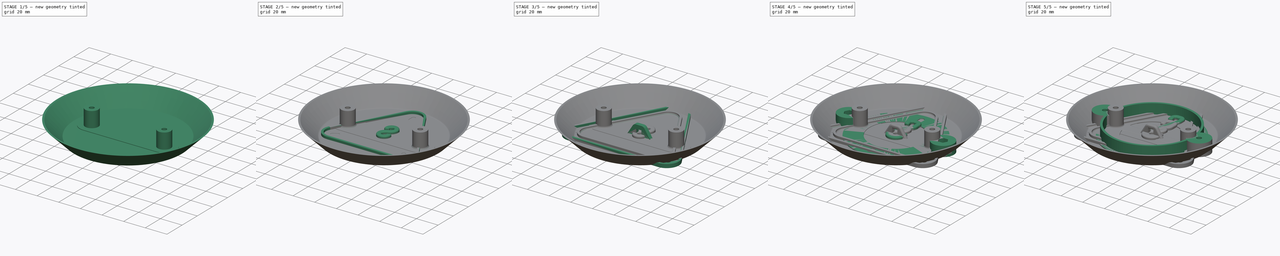
[diagram: build sequence overview — one tinted view per stage of 5, left to right]
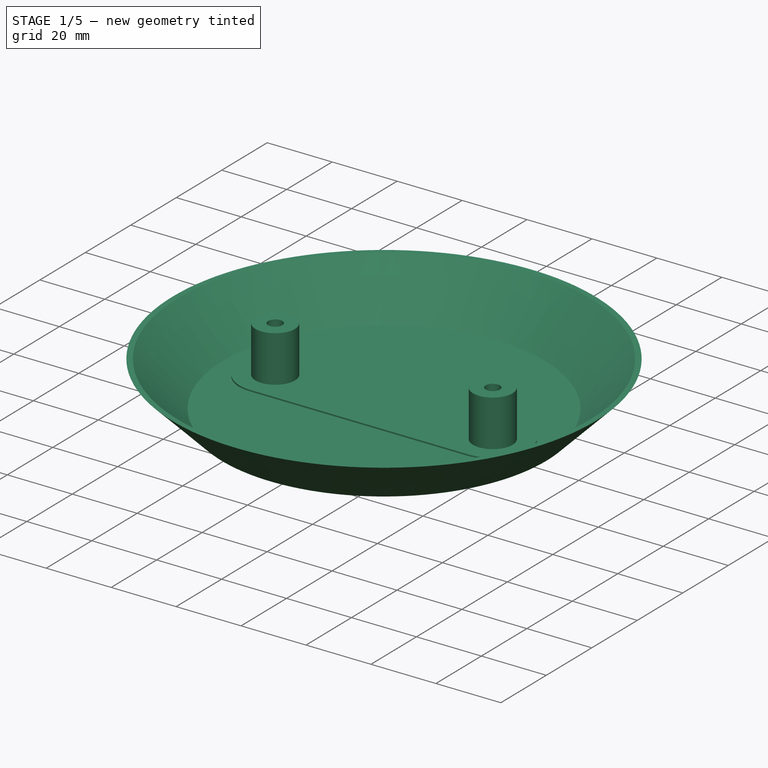
[diagram: stage 1 of 5 — iso view after this stage's code; geometry added in this stage tinted green]
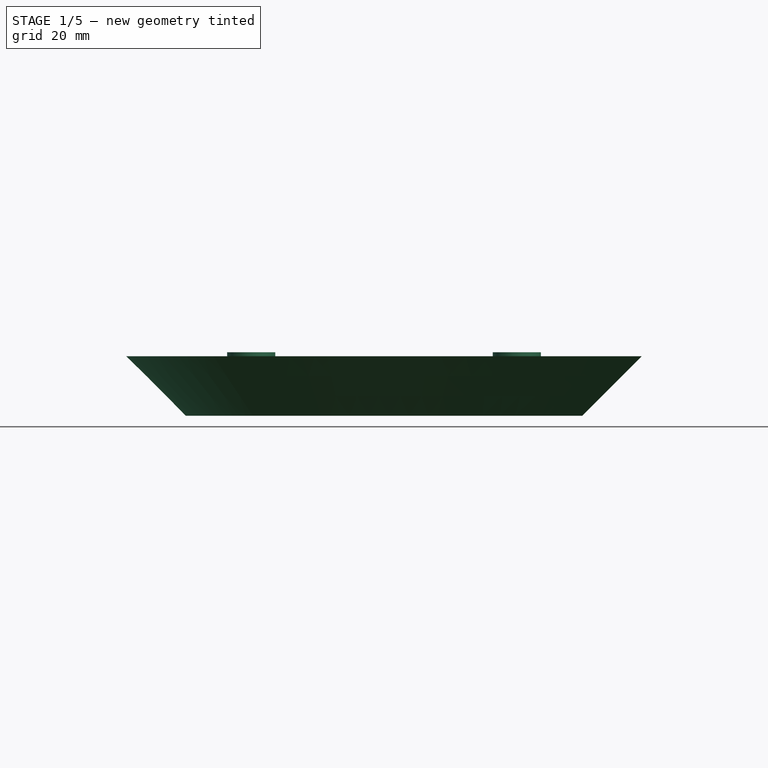
[diagram: stage 1 of 5 — front view after this stage's code; geometry added in this stage tinted green]
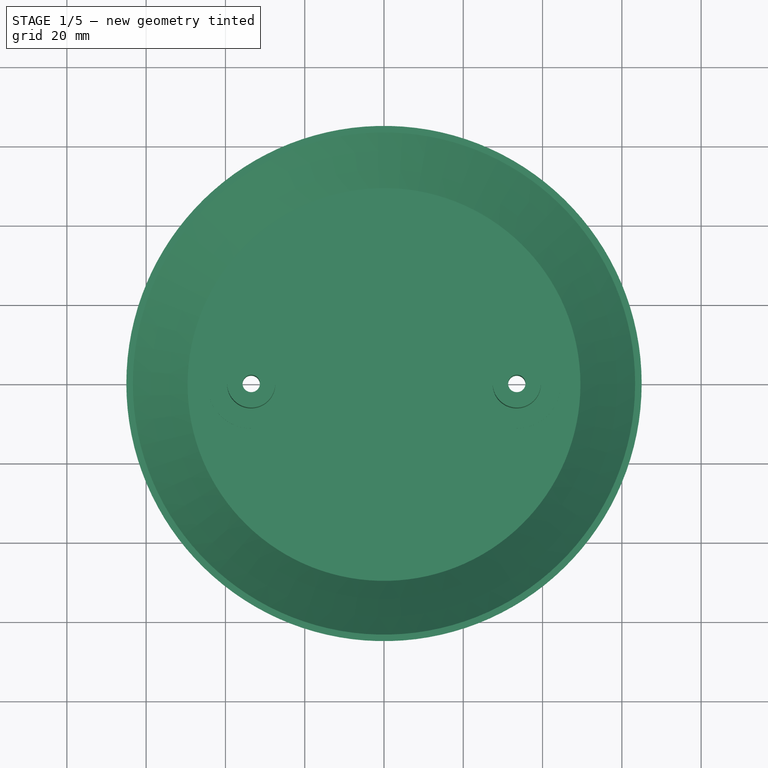
[diagram: stage 1 of 5 — top view after this stage's code; geometry added in this stage tinted green]
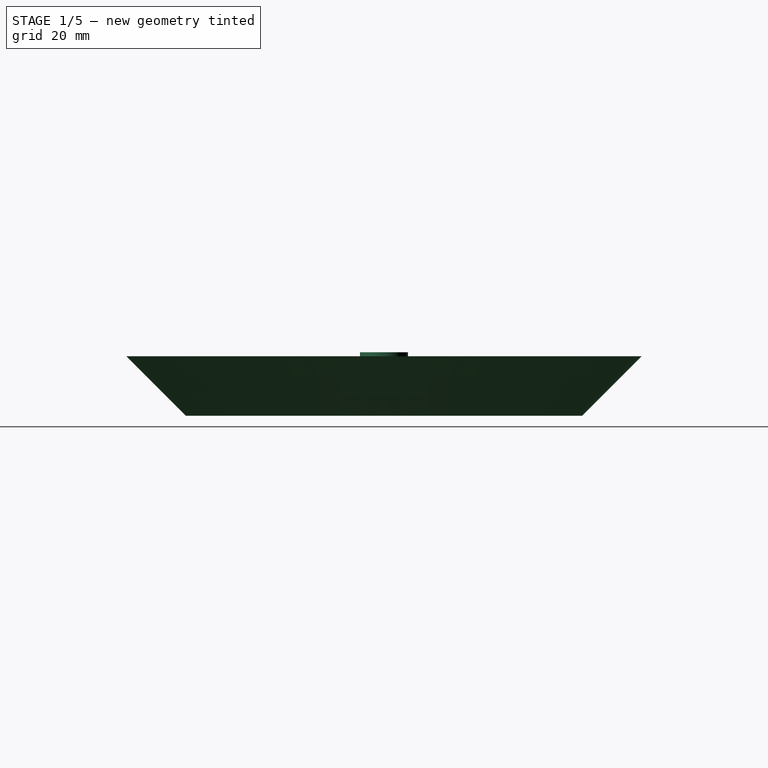
[diagram: stage 1 of 5 — right view after this stage's code; geometry added in this stage tinted green]
FCSTD DOCUMENT  (FreeCAD 0.19R24291 (Git))
Label: CeilingLampAdapter
License: All rights reserved
LicenseURL: http://en.wikipedia.org/wiki/All_rights_reserved
objects: Sketcher::SketchObject×27, PartDesign::Pad×18, PartDesign::Body×9, PartDesign::Fillet×7, PartDesign::Pocket×4, Spreadsheet::Sheet×2, App::Part×2, PartDesign::Chamfer×1, PartDesign::AdditiveLoft×1, PartDesign::ShapeBinder×1
note: 99 computed .brp shape members not serialized (recipe doc carries the construction recipe); baked Part::Feature solids carry a one-line shape summary decoded from their .brp

FEATURE [PartDesign::Body] Body007  label="SmallHookBody"
  Group = -> [Sketch018,Pad014,Fillet007]
  Origin = -> Origin009
  Tip = -> Fillet007
FEATURE [Sketcher::SketchObject] Sketch019  label="CBC_Template_top"
  FullyConstrained = true
  MapMode = 5
  Support = -> [XY_Plane008]
  expr: Constraints[18] = .Constraints.Ri + 15mm
  expr: Constraints[12] = .Constraints.Rh + 2.07mm
  expr: Constraints[2] = <<Screws>>.M4Radius
  sketch-geometry (10):
    g0: Circle CenterX=-33.5 CenterY=0 CenterZ=0 NormalX=0 NormalY=0 NormalZ=1 AngleXU=0 Radius=2.2
    g1: Circle CenterX=33.5 CenterY=0 CenterZ=0 NormalX=0 NormalY=0 NormalZ=1 AngleXU=0 Radius=2.2
    g2: LineSegment StartX=-33.5 StartY=0 StartZ=0 EndX=33.5 EndY=0 EndZ=0
    g3: GeomPoint X=0 Y=0 Z=0
    g4: Circle CenterX=0 CenterY=0 CenterZ=0 NormalX=0 NormalY=0 NormalZ=1 AngleXU=0 Radius=50
    g5: Circle CenterX=-33.5 CenterY=0 CenterZ=0 NormalX=0 NormalY=0 NormalZ=1 AngleXU=0 Radius=4
    g6: Circle CenterX=-33.5 CenterY=0 CenterZ=0 NormalX=0 NormalY=0 NormalZ=1 AngleXU=0 Radius=6.07
    g7: Circle CenterX=33.5 CenterY=0 CenterZ=0 NormalX=0 NormalY=0 NormalZ=1 AngleXU=0 Radius=4
    g8: Circle CenterX=33.5 CenterY=0 CenterZ=0 NormalX=0 NormalY=0 NormalZ=1 AngleXU=0 Radius=6.07
    g9: Circle CenterX=0 CenterY=0 CenterZ=0 NormalX=0 NormalY=0 NormalZ=1 AngleXU=0 Radius=65
  constraints (20):
    c: DistanceX(g0,g1) = 67
    c: Equal(g0,g1)
    c: Radius(g0) = 2.2
    c: Coincident(g2,g0)
    c: Coincident(g2,g1)
    c: Horizontal(g2)
    c: Symmetric(g0,g1,g3)
    c: Coincident(g4,g3)
    c: Radius(g4) = 50  'Ri'
    c: Coincident(g5,g0)
    c: Coincident(g6,g0)
    c: Radius(g5) = 4  'Rh'
    c: Radius(g6) = 6.07
    c: Coincident(g7,g1)
    c: Coincident(g8,g1)
    c: Equal(g8,g6)
    c: Equal(g5,g7)
    c: Coincident(g9,g4)
    c: Radius(g9) = 65
    c: Coincident(g4,g-1)  '__ANCHOR__'
FEATURE [Sketcher::SketchObject] Sketch020  label="CBC_Base"
  ExternalGeometry = -> [Sketch019]
  FullyConstrained = true
  MapMode = 5
  Support = -> [XY_Plane008]
  sketch-geometry (3):
    g0: Circle CenterX=0 CenterY=0 CenterZ=0 NormalX=0 NormalY=0 NormalZ=1 AngleXU=0 Radius=50
    g1: Circle CenterX=33.5 CenterY=0 CenterZ=0 NormalX=0 NormalY=0 NormalZ=1 AngleXU=0 Radius=2.2
    g2: Circle CenterX=-33.5 CenterY=0 CenterZ=0 NormalX=0 NormalY=0 NormalZ=1 AngleXU=0 Radius=2.2
  constraints (6):
    c: Coincident(g0,g-1)
    c: Equal(g0,g-3)
    c: Equal(g2,g-5)
    c: Equal(g1,g-4)
    c: Coincident(g1,g-4)
    c: Coincident(g2,g-5)
FEATURE [PartDesign::Pad] Pad015  label="CBC_Base_"
  Direction = (1,1,1)
  Length = 1.2
  Length2 = 100
  Profile = -> Sketch020
  Type = 0
FEATURE [Sketcher::SketchObject] Sketch021  label="CBC_SideBottom"
  ExternalGeometry = -> [Sketch019]
  FullyConstrained = true
  MapMode = 5
  Support = -> [XY_Plane008]
  sketch-geometry (3):
    g0: Circle CenterX=0 CenterY=0 CenterZ=0 NormalX=0 NormalY=0 NormalZ=1 AngleXU=0 Radius=48.35
    g1: Circle CenterX=0 CenterY=0 CenterZ=0 NormalX=0 NormalY=0 NormalZ=1 AngleXU=0 Radius=50
    g2: LineSegment StartX=48.35 StartY=0 StartZ=0 EndX=50 EndY=0 EndZ=0
  constraints (8):
    c: Coincident(g0,g-1)
    c: Coincident(g1,g0)
    c: PointOnObject(g2,g0)
    c: PointOnObject(g2,g1)
    c: PointOnObject(g0,g2)
    c: Horizontal(g2)
    c: DistanceX(g2,g2) = 1.65
    c: Equal(g1,g-3)
FEATURE [Sketcher::SketchObject] Sketch022  label="CBC_SideTop"
  AttachmentOffset = pos=(0,0,15) rot=(0,0,1;0rad)
  ExternalGeometry = -> [Sketch019]
  FullyConstrained = true
  MapMode = 5
  Placement = pos=(0,0,15) rot=(0,0,1;0rad)
  Support = -> [XY_Plane008]
  sketch-geometry (3):
    g0: Circle CenterX=1e-16 CenterY=0 CenterZ=0 NormalX=0 NormalY=0 NormalZ=1 AngleXU=0 Radius=63.35
    g1: Circle CenterX=1e-16 CenterY=0 CenterZ=0 NormalX=0 NormalY=0 NormalZ=1 AngleXU=0 Radius=65
    g2: LineSegment StartX=63.35 StartY=0 StartZ=0 EndX=65 EndY=0 EndZ=0
  constraints (8):
    c: Coincident(g0,g-1)
    c: Coincident(g1,g0)
    c: PointOnObject(g2,g0)
    c: PointOnObject(g2,g1)
    c: PointOnObject(g0,g2)
    c: Horizontal(g2)
    c: DistanceX(g2,g2) = 1.65
    c: Equal(g1,g-3)
FEATURE [PartDesign::AdditiveLoft] AdditiveLoft  label="CBC_SideLoft"
  BaseFeature = -> Pad015
  Closed = false
  Profile = -> Sketch021
  Refine = true
  Ruled = false
  Sections = -> [Sketch022]
FEATURE [Sketcher::SketchObject] Sketch023  label="CBC_ScrewBase"
  AttachmentOffset = pos=(0,0,1.2) rot=(0,0,1;0rad)
  ExternalGeometry = -> [Sketch019]
  FullyConstrained = true
  MapMode = 5
  Placement = pos=(0,0,1.2) rot=(0,0,1;0rad)
  Support = -> [XY_Plane008]
  expr: .AttachmentOffset.Base.z = <<CBC_Base>>.AttachmentOffset.Base.z + <<CBC_Base_>>.Length
  sketch-geometry (4):
    g0: Circle CenterX=-33.5 CenterY=0 CenterZ=0 NormalX=0 NormalY=0 NormalZ=1 AngleXU=0 Radius=2.2
    g1: Circle CenterX=-33.5 CenterY=0 CenterZ=0 NormalX=0 NormalY=0 NormalZ=1 AngleXU=0 Radius=6.07
    g2: Circle CenterX=33.5 CenterY=0 CenterZ=0 NormalX=0 NormalY=0 NormalZ=1 AngleXU=0 Radius=2.2
    g3: Circle CenterX=33.5 CenterY=0 CenterZ=0 NormalX=0 NormalY=0 NormalZ=1 AngleXU=0 Radius=6.07
  constraints (8):
    c: Coincident(g0,g-4)
    c: Coincident(g1,g0)
    c: Coincident(g2,g-6)
    c: Coincident(g3,g2)
    c: Equal(g3,g-6)
    c: Equal(g2,g-5)
    c: Equal(g1,g-4)
    c: Equal(g0,g-3)
FEATURE [PartDesign::Pad] Pad016  label="CBC_ScrewBase_"
  BaseFeature = -> AdditiveLoft
  Direction = (1,1,1)
  Length = 14.8
  Length2 = 100
  Profile = -> Sketch023
  Type = 0
  expr: Length = <<CBC_SideTop>>.AttachmentOffset.Base.z - <<CBC_ScrewBase>>.AttachmentOffset.Base.z + 1mm
FEATURE [PartDesign::Body] Body008  label="CentralBoxCoverBody"
  Group = -> [Sketch019,Sketch020,Pad015,Sketch021,Sketch022,AdditiveLoft,Sketch023,Pad016,Sketch024,Pocket002,Fillet008]
  Origin = -> Origin010
  Tip = -> Fillet008
FEATURE [PartDesign::ShapeBinder] ShapeBinder
  Support = -> [Sketch019]
  TraceSupport = false
FEATURE [Sketcher::SketchObject] Sketch025
  ExternalGeometry = -> [ShapeBinder]
  FullyConstrained = true
  MapMode = 5
  Support = -> [XY_Plane009]
  sketch-geometry (5):
    g0: ArcOfCircle CenterX=-33.5 CenterY=0 CenterZ=0 NormalX=0 NormalY=0 NormalZ=1 AngleXU=0 Radius=11.07 StartAngle=1.5708 EndAngle=4.71239
    g1: ArcOfCircle CenterX=33.5 CenterY=0 CenterZ=0 NormalX=0 NormalY=0 NormalZ=1 AngleXU=0 Radius=11.07 StartAngle=4.71239 EndAngle=7.85398
    g2: LineSegment StartX=-33.5 StartY=-11.07 StartZ=0 EndX=33.5 EndY=-11.07 EndZ=0
    g3: LineSegment StartX=-33.5 StartY=11.07 StartZ=0 EndX=33.5 EndY=11.07 EndZ=0
    g4: LineSegment StartX=33.5 StartY=11.07 StartZ=0 EndX=33.5 EndY=6.07 EndZ=0
  constraints (11):
    c: Tangent(g0,g3) = 1.5708
    c: Tangent(g0,g2) = -1.5708
    c: Tangent(g2,g1) = -1.5708
    c: Tangent(g3,g1) = 1.5708
    c: Horizontal(g2)
    c: Coincident(g0,g-3)
    c: Coincident(g1,g-4)
    c: Coincident(g4,g1)
    c: PointOnObject(g4,g-5)
    c: Vertical(g4)
    c: DistanceY(g4,g4) = 5
FEATURE [PartDesign::Pad] Pad017
  Direction = (1,1,1)
  Length = 1.65
  Length2 = 100
  Profile = -> Sketch025
  Type = 0
FEATURE [Sketcher::SketchObject] Sketch026
  ExternalGeometry = -> [ShapeBinder]
  FullyConstrained = true
  MapMode = 5
  Support = -> [XY_Plane009]
  sketch-geometry (4):
    g0: Circle CenterX=-33.5 CenterY=0 CenterZ=0 NormalX=0 NormalY=0 NormalZ=1 AngleXU=0 Radius=6.07
    g1: Circle CenterX=-33.5 CenterY=0 CenterZ=0 NormalX=0 NormalY=0 NormalZ=1 AngleXU=0 Radius=2.2
    g2: Circle CenterX=33.5 CenterY=0 CenterZ=0 NormalX=0 NormalY=0 NormalZ=1 AngleXU=0 Radius=6.07
    g3: Circle CenterX=33.5 CenterY=0 CenterZ=0 NormalX=0 NormalY=0 NormalZ=1 AngleXU=0 Radius=2.2
  constraints (8):
    c: Coincident(g0,g-6)
    c: Coincident(g1,g0)
    c: Coincident(g2,g-4)
    c: Coincident(g3,g2)
    c: Equal(g2,g-3)
    c: Equal(g3,g-4)
    c: Equal(g0,g-5)
    c: Equal(g1,g-6)
FEATURE [PartDesign::Pad] Pad018
  BaseFeature = -> Pad017
  Direction = (1,1,1)
  Length = 15
  Length2 = 100
  Profile = -> Sketch026
  Type = 0
FEATURE [Sketcher::SketchObject] Sketch027
  AttachmentOffset = pos=(0,0,13) rot=(0,0,1;0rad)
  ExternalGeometry = -> [ShapeBinder]
  FullyConstrained = true
  MapMode = 5
  Placement = pos=(0,0,13) rot=(0,0,1;0rad)
  Support = -> [XY_Plane009]
  sketch-geometry (2):
    g0: Circle CenterX=-33.5 CenterY=0 CenterZ=0 NormalX=0 NormalY=0 NormalZ=1 AngleXU=0 Radius=4
    g1: Circle CenterX=33.5 CenterY=0 CenterZ=0 NormalX=0 NormalY=0 NormalZ=1 AngleXU=0 Radius=4
  constraints (4):
    c: Coincident(g0,g-3)
    c: Coincident(g1,g-4)
    c: Equal(g1,g-4)
    c: Equal(g0,g-3)
FEATURE [PartDesign::Pocket] Pocket003
  BaseFeature = -> Pad018
  Length = 5
  Length2 = 100
  Profile = -> Sketch027
  Refine = true
  Type = 1
FEATURE [PartDesign::Body] Body009
  Group = -> [ShapeBinder,Sketch025,Pad017,Sketch026,Pad018,Sketch027,Pocket003]
  Origin = -> Origin011
  Tip = -> Pocket003
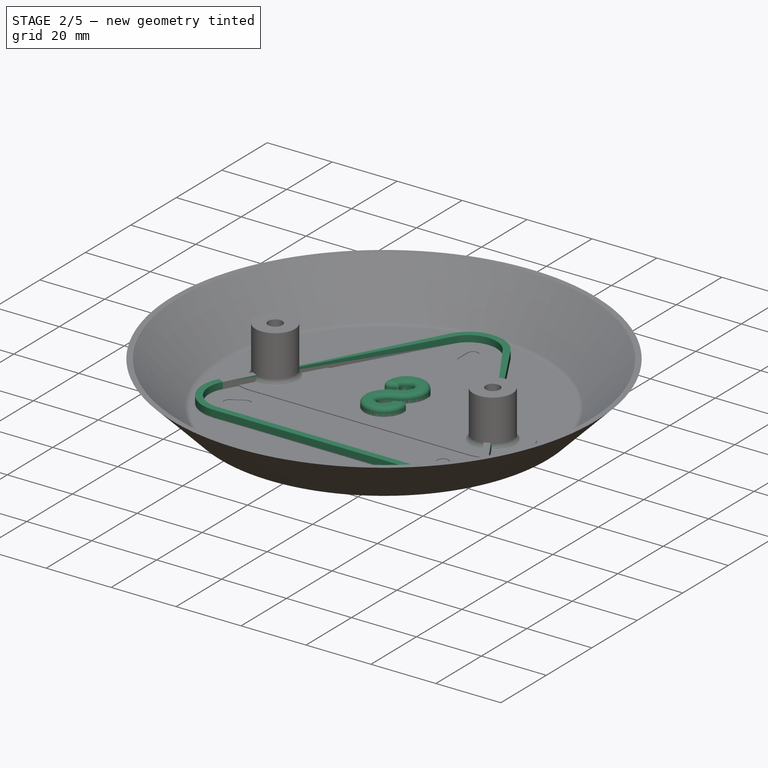
[diagram: stage 2 of 5 — iso view after this stage's code; geometry added in this stage tinted green]
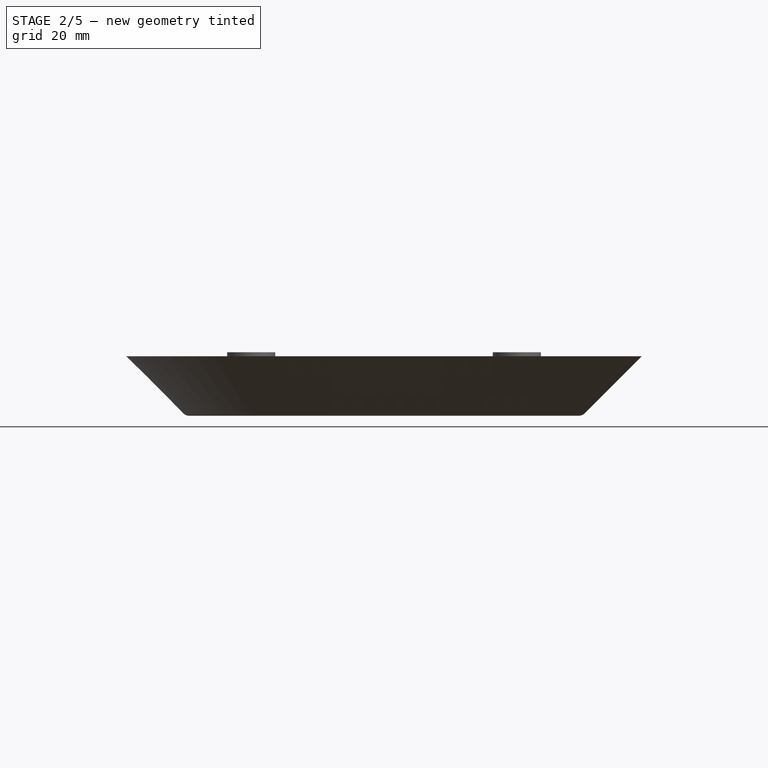
[diagram: stage 2 of 5 — front view after this stage's code; geometry added in this stage tinted green]
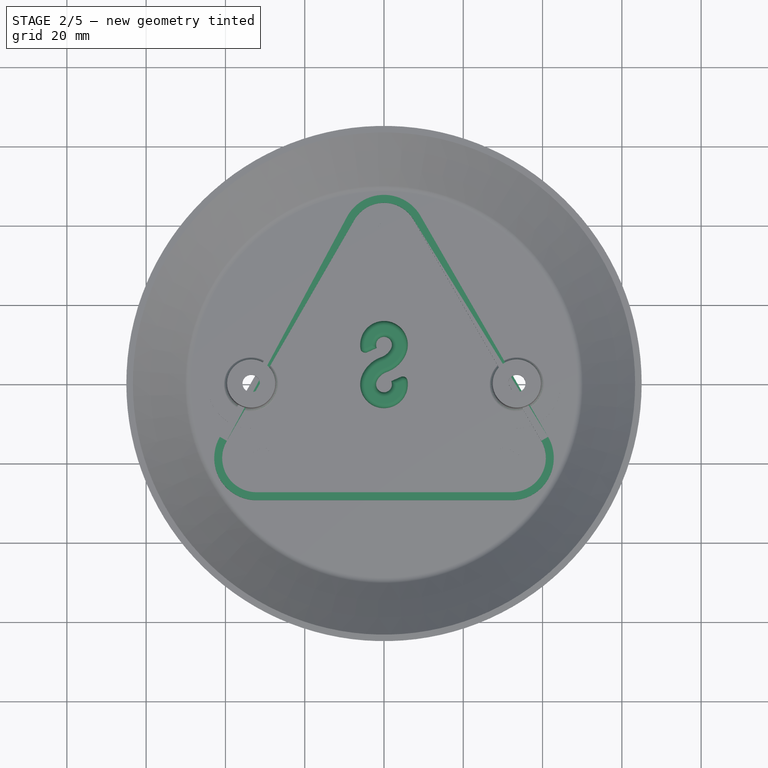
[diagram: stage 2 of 5 — top view after this stage's code; geometry added in this stage tinted green]
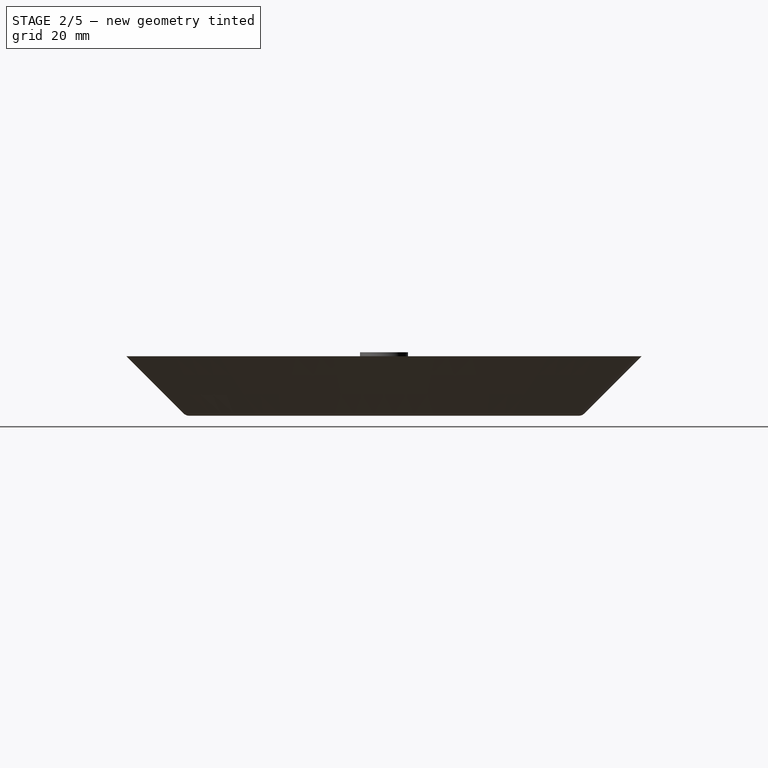
[diagram: stage 2 of 5 — right view after this stage's code; geometry added in this stage tinted green]
FEATURE [PartDesign::Body] Body005  label="LivingRoomMainLampAdapter"
  Group = -> [Sketch008,Sketch009,Pad009,Sketch010,Pad008,Sketch011,Pad010,Fillet005,Sketch012,Pocket001]
  Origin = -> Origin007
  Tip = -> Pocket001
FEATURE [Sketcher::SketchObject] Sketch013  label="GRLA_Template"
  FullyConstrained = true
  MapMode = 5
  expr: Constraints[80] = .Constraints.Rc + 2mm
  expr: .Constraints.Rc = .Constraints.Ri + .Constraints.Dist / 2 + 5mm
  sketch-geometry (46):
    g0: LineSegment StartX=-32.1728 StartY=-18.575 StartZ=0 EndX=7.1e-15 EndY=37.15 EndZ=0
    g1: LineSegment StartX=7.1e-15 StartY=37.15 StartZ=0 EndX=32.1728 EndY=-18.575 EndZ=0
    g2: LineSegment StartX=32.1728 StartY=-18.575 StartZ=0 EndX=-32.1728 EndY=-18.575 EndZ=0
    g3: Circle CenterX=0 CenterY=0 CenterZ=0 NormalX=0 NormalY=0 NormalZ=1 AngleXU=0 Radius=18.575
    g4: Circle CenterX=0 CenterY=0 CenterZ=0 NormalX=0 NormalY=0 NormalZ=1 AngleXU=0 Radius=63.5
    g5: LineSegment StartX=-39.664 StartY=-14.25 StartZ=0 EndX=-7.49112 EndY=41.475 EndZ=0
    g6: LineSegment StartX=7.49112 StartY=41.475 StartZ=0 EndX=39.664 EndY=-14.25 EndZ=0
    g7: LineSegment StartX=32.1728 StartY=-27.225 StartZ=0 EndX=-32.1728 EndY=-27.225 EndZ=0
    g8: ArcOfCircle CenterX=-32.1728 CenterY=-18.575 CenterZ=0 NormalX=0 NormalY=0 NormalZ=1 AngleXU=0 Radius=8.65 StartAngle=2.61799 EndAngle=4.71239
    g9: ArcOfCircle CenterX=7.1e-15 CenterY=37.15 CenterZ=0 NormalX=0 NormalY=0 NormalZ=1 AngleXU=0 Radius=8.65 StartAngle=0.523599 EndAngle=2.61799
    g10: ArcOfCircle CenterX=32.1728 CenterY=-18.575 CenterZ=0 NormalX=0 NormalY=0 NormalZ=1 AngleXU=0 Radius=8.65 StartAngle=4.71239 EndAngle=6.80678
    g11: LineSegment StartX=7.1e-15 StartY=37.15 StartZ=0 EndX=7.49112 EndY=41.475 EndZ=0
    g12: LineSegment StartX=7.1e-15 StartY=37.15 StartZ=0 EndX=-7.49112 EndY=41.475 EndZ=0
    g13: LineSegment StartX=32.1728 StartY=-18.575 StartZ=0 EndX=39.664 EndY=-14.25 EndZ=0
    g14: LineSegment StartX=32.1728 StartY=-18.575 StartZ=0 EndX=32.1728 EndY=-27.225 EndZ=0
    g15: LineSegment StartX=-32.1728 StartY=-18.575 StartZ=0 EndX=-32.1728 EndY=-27.225 EndZ=0
    g16: LineSegment StartX=-39.664 StartY=-14.25 StartZ=0 EndX=-32.1728 EndY=-18.575 EndZ=0
    g17: LineSegment StartX=-9.22317 StartY=42.475 StartZ=0 EndX=-41.396 EndY=-13.25 EndZ=0
    g18: LineSegment StartX=-32.1728 StartY=-29.225 StartZ=0 EndX=32.1728 EndY=-29.225 EndZ=0
    g19: LineSegment StartX=41.396 StartY=-13.25 StartZ=0 EndX=9.22317 EndY=42.475 EndZ=0
    g20: ArcOfCircle CenterX=7.1e-15 CenterY=37.15 CenterZ=0 NormalX=0 NormalY=0 NormalZ=1 AngleXU=0 Radius=10.65 StartAngle=0.523599 EndAngle=2.61799
    g21: ArcOfCircle CenterX=32.1728 CenterY=-18.575 CenterZ=0 NormalX=0 NormalY=0 NormalZ=1 AngleXU=0 Radius=10.65 StartAngle=4.71239 EndAngle=6.80678
    g22: ArcOfCircle CenterX=-32.1728 CenterY=-18.575 CenterZ=0 NormalX=0 NormalY=0 NormalZ=1 AngleXU=0 Radius=10.65 StartAngle=2.61799 EndAngle=4.71239
    g23: ArcOfCircle CenterX=7.5e-15 CenterY=39.15 CenterZ=0 NormalX=0 NormalY=0 NormalZ=1 AngleXU=0 Radius=1.65 StartAngle=1.7e-15 EndAngle=3.14159
    g24: ArcOfCircle CenterX=6.7e-15 CenterY=35.15 CenterZ=0 NormalX=0 NormalY=0 NormalZ=1 AngleXU=0 Radius=1.65 StartAngle=3.14159 EndAngle=6.28319
    g25: LineSegment StartX=-1.65 StartY=39.15 StartZ=0 EndX=-1.65 EndY=35.15 EndZ=0
    g26: LineSegment StartX=1.65 StartY=39.15 StartZ=0 EndX=1.65 EndY=35.15 EndZ=0
    g27: LineSegment StartX=7.5e-15 StartY=39.15 StartZ=0 EndX=6.7e-15 EndY=35.15 EndZ=0
    g28: LineSegment StartX=33.9049 StartY=-19.575 StartZ=0 EndX=30.4408 EndY=-17.575 EndZ=0
    g29: ArcOfCircle CenterX=30.4408 CenterY=-17.575 CenterZ=0 NormalX=0 NormalY=0 NormalZ=1 AngleXU=0 Radius=1.65 StartAngle=1.0472 EndAngle=4.18879
    g30: ArcOfCircle CenterX=33.9049 CenterY=-19.575 CenterZ=0 NormalX=0 NormalY=0 NormalZ=1 AngleXU=0 Radius=1.65 StartAngle=4.18879 EndAngle=7.33038
    g31: LineSegment StartX=31.2658 StartY=-16.1461 StartZ=0 EndX=34.7299 EndY=-18.1461 EndZ=0
    g32: LineSegment StartX=29.6158 StartY=-19.0039 StartZ=0 EndX=33.0799 EndY=-21.0039 EndZ=0
    g33: LineSegment StartX=-33.9049 StartY=-19.575 StartZ=0 EndX=-30.4408 EndY=-17.575 EndZ=0
    g34: ArcOfCircle CenterX=-30.4408 CenterY=-17.575 CenterZ=0 NormalX=0 NormalY=0 NormalZ=1 AngleXU=0 Radius=1.65 StartAngle=5.23599 EndAngle=8.37758
    g35: ArcOfCircle CenterX=-33.9049 CenterY=-19.575 CenterZ=0 NormalX=0 NormalY=0 NormalZ=1 AngleXU=0 Radius=1.65 StartAngle=2.0944 EndAngle=5.23599
    g36: LineSegment StartX=-34.7299 StartY=-18.1461 StartZ=0 EndX=-31.2658 EndY=-16.1461 EndZ=0
    g37: LineSegment StartX=-33.0799 StartY=-21.0039 StartZ=0 EndX=-29.6158 EndY=-19.0039 EndZ=0
    g38: LineSegment StartX=-2.5 StartY=1.75 StartZ=0 EndX=2.5 EndY=1.75 EndZ=0
    g39: LineSegment StartX=2.5 StartY=1.75 StartZ=0 EndX=2.5 EndY=-1.75 EndZ=0
    g40: LineSegment StartX=2.5 StartY=-1.75 StartZ=0 EndX=-2.5 EndY=-1.75 EndZ=0
    g41: LineSegment StartX=-2.5 StartY=-1.75 StartZ=0 EndX=-2.5 EndY=1.75 EndZ=0
    g42: LineSegment StartX=-3e-16 StartY=1.75 StartZ=0 EndX=-3e-16 EndY=-1.75 EndZ=0
    g43: Circle CenterX=0 CenterY=0 CenterZ=0 NormalX=0 NormalY=0 NormalZ=1 AngleXU=0 Radius=31.5
    g44: GeomPoint X=-29.0119 Y=-16.75 Z=0
    g45: GeomPoint X=-27.2798 Y=-15.75 Z=0
  constraints (115):
    c: Coincident(g0,g1)
    c: Coincident(g1,g2)
    c: Coincident(g2,g0)
    c: Equal(g0,g2)
    c: Equal(g2,g1)
    c: Tangent(g1,g3)
    c: Tangent(g3,g0)
    c: Tangent(g3,g2)
    c: Horizontal(g2)
    c: Coincident(g4,g3)
    c: Diameter(g4) = 127
    c: Coincident(g8,g0)
    c: Coincident(g8,g7)
    c: Coincident(g8,g5)
    c: Coincident(g9,g0)
    c: Coincident(g9,g5)
    c: Coincident(g9,g6)
    c: Coincident(g10,g1)
    c: Coincident(g10,g6)
    c: Coincident(g10,g7)
    c: Coincident(g11,g9)
    c: Coincident(g11,g6)
    c: Coincident(g12,g9)
    c: Coincident(g12,g5)
    c: Coincident(g13,g10)
    c: Coincident(g13,g6)
    c: Coincident(g14,g10)
    c: Coincident(g14,g7)
    c: Coincident(g15,g8)
    c: Coincident(g15,g7)
    c: Coincident(g16,g5)
    c: Equal(g12,g13)
    c: Equal(g13,g14)
    c: Equal(g14,g15)
    c: Equal(g15,g16)
    c: Perpendicular(g0,g16)
    c: Perpendicular(g0,g12)
    c: Perpendicular(g1,g11)
    c: Perpendicular(g1,g13)
    c: Perpendicular(g2,g14)
    c: Perpendicular(g2,g15)
    c: Horizontal(g18)
    c: PointOnObject(g19,g11)
    c: PointOnObject(g19,g13)
    c: PointOnObject(g18,g14)
    c: PointOnObject(g18,g15)
    c: PointOnObject(g17,g16)
    c: PointOnObject(g17,g12)
    c: Coincident(g20,g0)
    c: Coincident(g20,g17)
    c: Coincident(g20,g19)
    c: Coincident(g21,g1)
    c: Coincident(g21,g18)
    c: Coincident(g21,g19)
    c: Coincident(g22,g0)
    c: Coincident(g22,g17)
    c: Coincident(g22,g18)
    c: Equal(g20,g21)
    c: Tangent(g23,g26) = 1.5708
    c: Tangent(g23,g25) = -1.5708
    c: Tangent(g25,g24) = -1.5708
    c: Tangent(g26,g24) = 1.5708
    c: Equal(g23,g24)
    c: Coincident(g27,g23)
    c: Coincident(g27,g24)
    c: Symmetric(g24,g23,g0)
    c: Symmetric(g28,g28,g1)
    c: PointOnObject(g3,g28)
    c: Equal(g25,g26)
    c: PointOnObject(g3,g27)
    c: Equal(g27,g28)
    c: Coincident(g29,g28)
    c: Coincident(g30,g28)
    c: Tangent(g30,g31) = 1.5708
    c: Tangent(g30,g32) = -1.5708
    c: Tangent(g29,g32) = -1.5708
    c: Tangent(g29,g31) = 1.5708
    c: Equal(g24,g29)
    c: Equal(g29,g30)
    c: Radius(g8) = 8.65  'Rc'
    c: Radius(g22) = 10.65
    c: Symmetric(g33,g33,g0)
    c: PointOnObject(g3,g33)
    c: Equal(g33,g28)
    c: Coincident(g34,g33)
    c: Coincident(g35,g33)
    c: Tangent(g35,g37) = -1.5708
    c: Tangent(g34,g37) = -1.5708
    c: Tangent(g34,g36) = 1.5708
    c: Tangent(g35,g36) = 1.5708
    c: Equal(g35,g34)
    c: Equal(g34,g30)
    c: Coincident(g38,g39)
    c: Coincident(g39,g40)
    c: Coincident(g40,g41)
    c: Coincident(g41,g38)
    c: Horizontal(g38)
    c: Vertical(g39)
    c: Equal(g41,g39)
    c: Equal(g38,g40)
    c: Symmetric(g40,g38,g3)
    c: PointOnObject(g42,g38)
    c: PointOnObject(g42,g40)
    c: Symmetric(g38,g38,g42)
    c: Distance(g41) = 3.5
    c: DistanceX(g38,g38) = 5
    c: Radius(g34) = 1.65  'Ri'
    c: Distance(g37) = 4  'Dist'
    c: Coincident(g43,g3)
    c: Diameter(g43) = 63
    c: PointOnObject(g44,g34)
    c: PointOnObject(g45,g43)
    c: PointOnObject(g44,g33)
    c: PointOnObject(g45,g33)
    c: Coincident(g3,g-1)  '__ANCHOR__'
FEATURE [Sketcher::SketchObject] Sketch014  label="GRLA_Base"
  ExternalGeometry = -> [Sketch013]
  FullyConstrained = true
  MapMode = 5
  Support = -> [XY_Plane006]
  sketch-geometry (18):
    g0: ArcOfCircle CenterX=7.1e-15 CenterY=37.15 CenterZ=0 NormalX=0 NormalY=0 NormalZ=1 AngleXU=0 Radius=10.65 StartAngle=0.523599 EndAngle=2.61799
    g1: ArcOfCircle CenterX=-32.1728 CenterY=-18.575 CenterZ=0 NormalX=0 NormalY=0 NormalZ=1 AngleXU=0 Radius=10.65 StartAngle=2.61799 EndAngle=4.71239
    g2: ArcOfCircle CenterX=32.1728 CenterY=-18.575 CenterZ=0 NormalX=0 NormalY=0 NormalZ=1 AngleXU=0 Radius=10.65 StartAngle=4.71239 EndAngle=6.80678
    g3: ArcOfCircle CenterX=7.5e-15 CenterY=39.15 CenterZ=0 NormalX=0 NormalY=0 NormalZ=1 AngleXU=0 Radius=1.65 StartAngle=0 EndAngle=3.14159
    g4: ArcOfCircle CenterX=6.7e-15 CenterY=35.15 CenterZ=0 NormalX=0 NormalY=0 NormalZ=1 AngleXU=0 Radius=1.65 StartAngle=3.14159 EndAngle=6.28319
    g5: ArcOfCircle CenterX=30.4408 CenterY=-17.575 CenterZ=0 NormalX=0 NormalY=0 NormalZ=1 AngleXU=0 Radius=1.65 StartAngle=1.0472 EndAngle=4.18879
    g6: ArcOfCircle CenterX=33.9049 CenterY=-19.575 CenterZ=0 NormalX=0 NormalY=0 NormalZ=1 AngleXU=0 Radius=1.65 StartAngle=4.18879 EndAngle=7.33038
    g7: ArcOfCircle CenterX=-30.4408 CenterY=-17.575 CenterZ=0 NormalX=0 NormalY=0 NormalZ=1 AngleXU=0 Radius=1.65 StartAngle=5.23599 EndAngle=8.37758
    g8: ArcOfCircle CenterX=-33.9049 CenterY=-19.575 CenterZ=0 NormalX=0 NormalY=0 NormalZ=1 AngleXU=0 Radius=1.65 StartAngle=2.0944 EndAngle=5.23599
    g9: LineSegment StartX=-34.7299 StartY=-18.1461 StartZ=0 EndX=-31.2658 EndY=-16.1461 EndZ=0
    g10: LineSegment StartX=-33.0799 StartY=-21.0039 StartZ=0 EndX=-29.6158 EndY=-19.0039 EndZ=0
    g11: LineSegment StartX=-32.1728 StartY=-29.225 StartZ=0 EndX=32.1728 EndY=-29.225 EndZ=0
    g12: LineSegment StartX=9.22317 StartY=42.475 StartZ=0 EndX=41.396 EndY=-13.25 EndZ=0
    g13: LineSegment StartX=-9.22317 StartY=42.475 StartZ=0 EndX=-41.396 EndY=-13.25 EndZ=0
    g14: LineSegment StartX=29.6158 StartY=-19.0039 StartZ=0 EndX=33.0799 EndY=-21.0039 EndZ=0
    g15: LineSegment StartX=31.2658 StartY=-16.1461 StartZ=0 EndX=34.7299 EndY=-18.1461 EndZ=0
    g16: LineSegment StartX=1.65 StartY=39.15 StartZ=0 EndX=1.65 EndY=35.15 EndZ=0
    g17: LineSegment StartX=-1.65 StartY=39.15 StartZ=0 EndX=-1.65 EndY=35.15 EndZ=0
  constraints (45):
    c: Coincident(g0,g-3)
    c: Coincident(g0,g-3)
    c: Coincident(g0,g-3)
    c: Coincident(g1,g-4)
    c: Coincident(g1,g-4)
    c: Coincident(g1,g-4)
    c: Coincident(g2,g-5)
    c: Coincident(g2,g-5)
    c: Coincident(g2,g-5)
    c: Coincident(g3,g-10)
    c: Coincident(g3,g-10)
    c: Coincident(g3,g-10)
    c: Coincident(g4,g-11)
    c: Coincident(g4,g-11)
    c: Coincident(g4,g-11)
    c: Coincident(g5,g-7)
    c: Coincident(g5,g-7)
    c: Coincident(g5,g-7)
    c: Coincident(g6,g-6)
    c: Coincident(g6,g-6)
    c: Coincident(g6,g-6)
    c: Coincident(g7,g-8)
    c: Coincident(g7,g-8)
    c: Coincident(g7,g-8)
    c: Coincident(g8,g-9)
    c: Coincident(g8,g-9)
    c: Coincident(g8,g-9)
    c: Coincident(g9,g8)
    c: Coincident(g9,g7)
    c: Coincident(g10,g8)
    c: Coincident(g10,g7)
    c: Coincident(g11,g1)
    c: Coincident(g11,g2)
    c: Coincident(g12,g0)
    c: Coincident(g12,g2)
    c: Coincident(g13,g0)
    c: Coincident(g13,g1)
    c: Coincident(g14,g5)
    c: Coincident(g14,g6)
    c: Coincident(g15,g5)
    c: Coincident(g15,g6)
    c: Coincident(g16,g3)
    c: Coincident(g16,g4)
    c: Coincident(g17,g3)
    c: Coincident(g17,g4)
FEATURE [PartDesign::Pad] Pad011  label="GRLA_Base_"
  AllowMultiFace = false
  Direction = (1,1,1)
  Length = 1.4
  Length2 = 100
  Profile = -> Sketch014
  Type = 0
FEATURE [Sketcher::SketchObject] Sketch015  label="GRLA_Verge"
  AttachmentOffset = pos=(0,0,1.4) rot=(0,0,1;0rad)
  ExternalGeometry = -> [Sketch013]
  FullyConstrained = true
  MapMode = 5
  Placement = pos=(0,0,1.4) rot=(0,0,1;0rad)
  Support = -> [XY_Plane006]
  expr: .AttachmentOffset.Base.z = <<GRLA_Base>>.Placement.Base.z + <<GRLA_Base_>>.Length
  sketch-geometry (12):
    g0: ArcOfCircle CenterX=7.7e-15 CenterY=37.15 CenterZ=0 NormalX=0 NormalY=0 NormalZ=1 AngleXU=0 Radius=8.65 StartAngle=0.523599 EndAngle=2.61799
    g1: ArcOfCircle CenterX=8.6e-15 CenterY=37.15 CenterZ=0 NormalX=0 NormalY=0 NormalZ=1 AngleXU=0 Radius=10.65 StartAngle=0.523599 EndAngle=2.61799
    g2: ArcOfCircle CenterX=-32.1728 CenterY=-18.575 CenterZ=0 NormalX=0 NormalY=0 NormalZ=1 AngleXU=0 Radius=8.65 StartAngle=2.61799 EndAngle=4.71239
    g3: ArcOfCircle CenterX=-32.1728 CenterY=-18.575 CenterZ=0 NormalX=0 NormalY=0 NormalZ=1 AngleXU=0 Radius=10.65 StartAngle=2.61799 EndAngle=4.71239
    g4: ArcOfCircle CenterX=32.1728 CenterY=-18.575 CenterZ=0 NormalX=0 NormalY=0 NormalZ=1 AngleXU=0 Radius=8.65 StartAngle=4.71239 EndAngle=6.80678
    g5: ArcOfCircle CenterX=32.1728 CenterY=-18.575 CenterZ=0 NormalX=0 NormalY=0 NormalZ=1 AngleXU=0 Radius=10.65 StartAngle=4.71239 EndAngle=6.80678
    g6: LineSegment StartX=-9.22317 StartY=42.475 StartZ=0 EndX=-41.396 EndY=-13.25 EndZ=0
    g7: LineSegment StartX=-39.664 StartY=-14.25 StartZ=0 EndX=-7.49112 EndY=41.475 EndZ=0
    g8: LineSegment StartX=-32.1728 StartY=-29.225 StartZ=0 EndX=32.1728 EndY=-29.225 EndZ=0
    g9: LineSegment StartX=32.1728 StartY=-27.225 StartZ=0 EndX=-32.1728 EndY=-27.225 EndZ=0
    g10: LineSegment StartX=39.664 StartY=-14.25 StartZ=0 EndX=7.49112 EndY=41.475 EndZ=0
    g11: LineSegment StartX=9.22317 StartY=42.475 StartZ=0 EndX=41.396 EndY=-13.25 EndZ=0
  constraints (30):
    c: Coincident(g0,g-6)
    c: Coincident(g0,g-6)
    c: Coincident(g1,g-3)
    c: Coincident(g1,g-3)
    c: Coincident(g2,g-7)
    c: Coincident(g2,g-7)
    c: Coincident(g3,g-4)
    c: Coincident(g3,g-4)
    c: Coincident(g4,g-8)
    c: Coincident(g4,g-8)
    c: Coincident(g5,g-5)
    c: Coincident(g5,g-5)
    c: Equal(g5,g-5)
    c: Equal(g1,g-3)
    c: Equal(g3,g-4)
    c: Equal(g2,g-7)
    c: Equal(g4,g-8)
    c: Equal(g0,g-6)
    c: Coincident(g6,g1)
    c: Coincident(g6,g3)
    c: Coincident(g7,g2)
    c: Coincident(g7,g0)
    c: Coincident(g8,g3)
    c: Coincident(g8,g5)
    c: Coincident(g9,g4)
    c: Coincident(g9,g2)
    c: Coincident(g10,g4)
    c: Coincident(g10,g0)
    c: Coincident(g11,g1)
    c: Coincident(g11,g5)
FEATURE [PartDesign::Pad] Pad012  label="GRLA_Verge_"
  AllowMultiFace = false
  BaseFeature = -> Pad011
  Direction = (1,1,1)
  Length = 2
  Length2 = 100
  Profile = -> Sketch015
  Type = 0
FEATURE [PartDesign::Body] Body006  label="GuestRoomLampAdapter"
  Group = -> [Sketch013,Sketch014,Pad011,Sketch015,Pad012,Sketch016,Pad013,Fillet006,Chamfer,Sketch017,Pocket]
  Origin = -> Origin008
  Tip = -> Pocket
FEATURE [App::Part] Part
  Group = -> [Body,Body001,Body004,Part001,Body005,Body006]
  License = CC BY 3.0
  LicenseURL = http://creativecommons.org/licenses/by/3.0/
  Origin = -> Origin001
FEATURE [Sketcher::SketchObject] Sketch018  label="SmallHook"
  FullyConstrained = true
  MapMode = 5
  Support = -> [XY_Plane007]
  sketch-geometry (15):
    g0: ArcOfCircle CenterX=0 CenterY=0 CenterZ=0 NormalX=0 NormalY=0 NormalZ=1 AngleXU=0 Radius=6 StartAngle=2.72271 EndAngle=6.70206
    g1: ArcOfCircle CenterX=0 CenterY=0 CenterZ=0 NormalX=0 NormalY=0 NormalZ=1 AngleXU=0 Radius=2 StartAngle=2.72271 EndAngle=6.70206
    g2: LineSegment StartX=0 StartY=0 StartZ=0 EndX=1.82709 EndY=0.813473 EndZ=0
    g3: LineSegment StartX=1.82709 StartY=0.813473 StartZ=0 EndX=5.48127 EndY=2.44042 EndZ=0
    g4: GeomPoint X=0 Y=2 Z=0
    g5: ArcOfCircle CenterX=2.09069 CenterY=-0.930834 CenterZ=0 NormalX=0 NormalY=0 NormalZ=1 AngleXU=0 Radius=4.28854 StartAngle=1.90971 EndAngle=2.72271
    g6: ArcOfCircle CenterX=2.09069 CenterY=-0.930834 CenterZ=0 NormalX=0 NormalY=0 NormalZ=1 AngleXU=0 Radius=8.28854 StartAngle=1.90971 EndAngle=2.72271
    g7: ArcOfCircle CenterX=-2.09069 CenterY=10.9308 CenterZ=0 NormalX=0 NormalY=0 NormalZ=1 AngleXU=0 Radius=8.28854 StartAngle=5.0513 EndAngle=5.86431
    g8: ArcOfCircle CenterX=-2.09069 CenterY=10.9308 CenterZ=0 NormalX=0 NormalY=0 NormalZ=1 AngleXU=0 Radius=4.28854 StartAngle=5.0513 EndAngle=5.86431
    g9: LineSegment StartX=5.48127 StartY=2.44042 StartZ=0 EndX=-5.48127 EndY=2.44042 EndZ=0
    g10: LineSegment StartX=1.82709 StartY=0.813473 StartZ=0 EndX=-1.82709 EndY=0.813473 EndZ=0
    g11: ArcOfCircle CenterX=0 CenterY=10 CenterZ=0 NormalX=0 NormalY=0 NormalZ=1 AngleXU=0 Radius=6 StartAngle=5.86431 EndAngle=9.84365
    g12: ArcOfCircle CenterX=0 CenterY=10 CenterZ=0 NormalX=0 NormalY=0 NormalZ=1 AngleXU=0 Radius=2 StartAngle=5.86431 EndAngle=9.84365
    g13: LineSegment StartX=-1.8271 StartY=9.18654 StartZ=0 EndX=-5.48128 EndY=7.5596 EndZ=0
    g14: GeomPoint X=0 Y=5 Z=0
  constraints (38):
    c: Coincident(g1,g0)
    c: Radius(g1) = 2
    c: Coincident(g2,g0)
    c: Coincident(g2,g1)
    c: Coincident(g3,g1)
    c: Coincident(g3,g0)
    c: Coincident(g0,g-1)
    c: PointOnObject(g4,g1)
    c: PointOnObject(g4,g-2)
    c: Parallel(g2,g3)
    c: Angle(g2,g-2) = 1.15192
    c: Tangent(g5,g7) = 1.5708
    c: Coincident(g8,g7)
    c: Coincident(g9,g0)
    c: Horizontal(g9)
    c: Coincident(g9,g0)
    c: Coincident(g10,g1)
    c: Coincident(g10,g1)
    c: Horizontal(g10)
    c: Tangent(g6,g8) = 1.5708
    c: Coincident(g6,g5)
    c: PointOnObject(g11,g-2)
    c: Coincident(g12,g11)
    c: Equal(g1,g12)
    c: Equal(g0,g11)
    c: Equal(g5,g8)
    c: Symmetric(g11,g0,g14)
    c: Symmetric(g5,g6,g14)
    c: DistanceY(g0,g11) = 10
    c: Coincident(g5,g1)
    c: Coincident(g8,g12)
    c: Coincident(g7,g11)
    c: Tangent(g6,g0) = -1.5708
    c: Coincident(g13,g11)
    c: Coincident(g13,g12)
    c: Distance(g3) = 4
    c: Equal(g13,g3)
    c: Parallel(g13,g3)
FEATURE [PartDesign::Pad] Pad014  label="SmallHook_"
  AllowMultiFace = false
  Direction = (1,1,1)
  Length = 4
  Length2 = 100
  Profile = -> Sketch018
  Refine = true
  Type = 0
  expr: Length = Spreadsheet.HookHeight
FEATURE [PartDesign::Fillet] Fillet007  label="SmallHookFillet"
  Base = -> Pad014 [Face11,Face12,Face7,Face2]
  BaseFeature = -> Pad014
  Radius = 1.2
  SupportTransform = false
FEATURE [Sketcher::SketchObject] Sketch024
  AttachmentOffset = pos=(0,0,14) rot=(0,0,1;0rad)
  ExternalGeometry = -> [Sketch019]
  FullyConstrained = true
  MapMode = 5
  Placement = pos=(0,0,14) rot=(0,0,1;0rad)
  Support = -> [XY_Plane008]
  expr: .AttachmentOffset.Base.z = <<CBC_ScrewBase>>.AttachmentOffset.Base.z + <<CBC_ScrewBase_>>.Length - 2mm
  sketch-geometry (2):
    g0: Circle CenterX=-33.5 CenterY=0 CenterZ=0 NormalX=0 NormalY=0 NormalZ=1 AngleXU=0 Radius=4
    g1: Circle CenterX=33.5 CenterY=0 CenterZ=0 NormalX=0 NormalY=0 NormalZ=1 AngleXU=0 Radius=4
  constraints (4):
    c: Coincident(g0,g-4)
    c: Coincident(g1,g-3)
    c: Equal(g1,g-3)
    c: Equal(g0,g-4)
FEATURE [PartDesign::Pocket] Pocket002
  BaseFeature = -> Pad016
  Length = 5
  Length2 = 100
  Profile = -> Sketch024
  Type = 1
FEATURE [PartDesign::Fillet] Fillet008
  Base = -> Pocket002 [Edge16,Edge15,Edge11,Edge1]
  BaseFeature = -> Pocket002
  Radius = 2
  SupportTransform = false
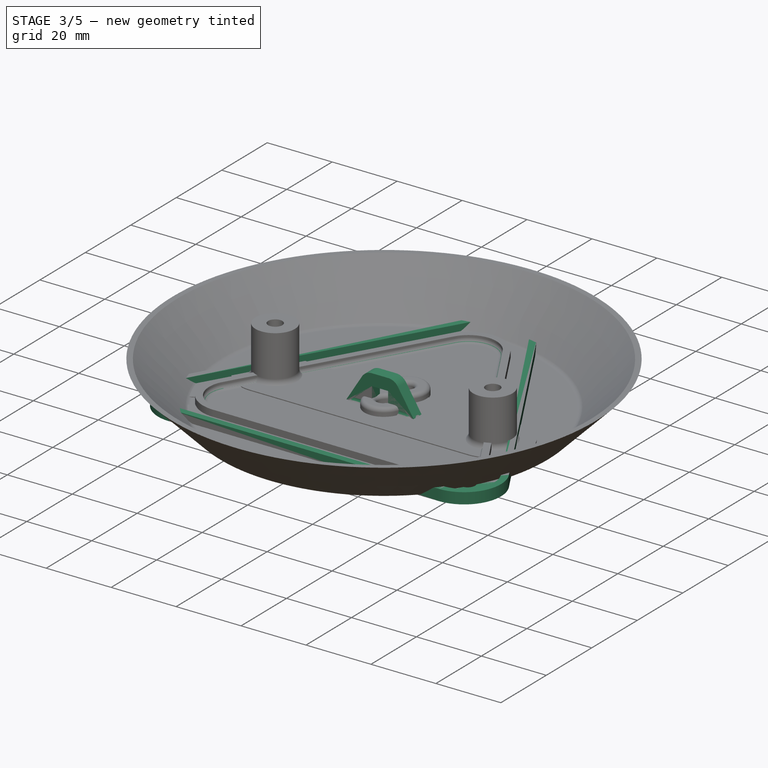
[diagram: stage 3 of 5 — iso view after this stage's code; geometry added in this stage tinted green]
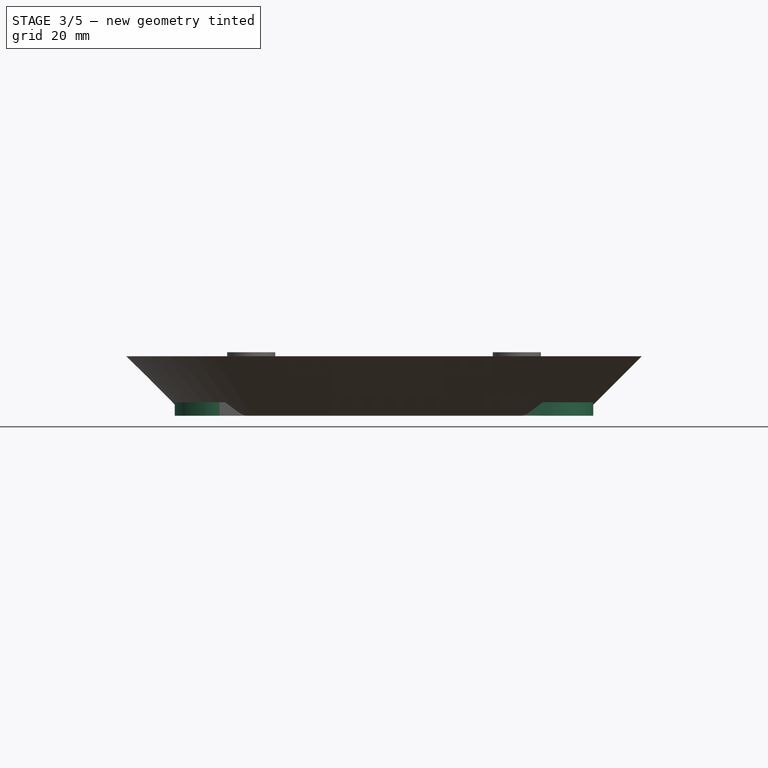
[diagram: stage 3 of 5 — front view after this stage's code; geometry added in this stage tinted green]
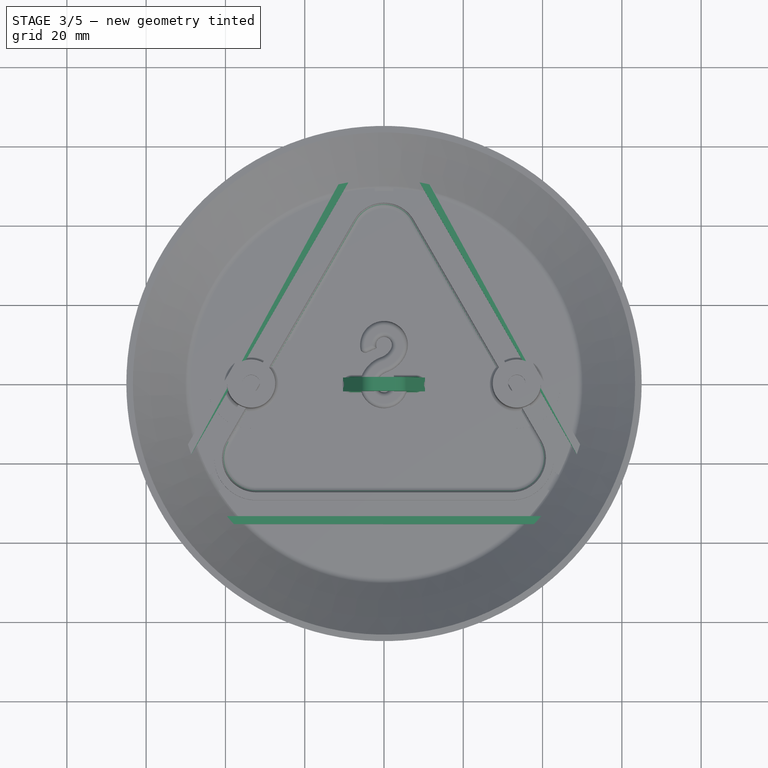
[diagram: stage 3 of 5 — top view after this stage's code; geometry added in this stage tinted green]
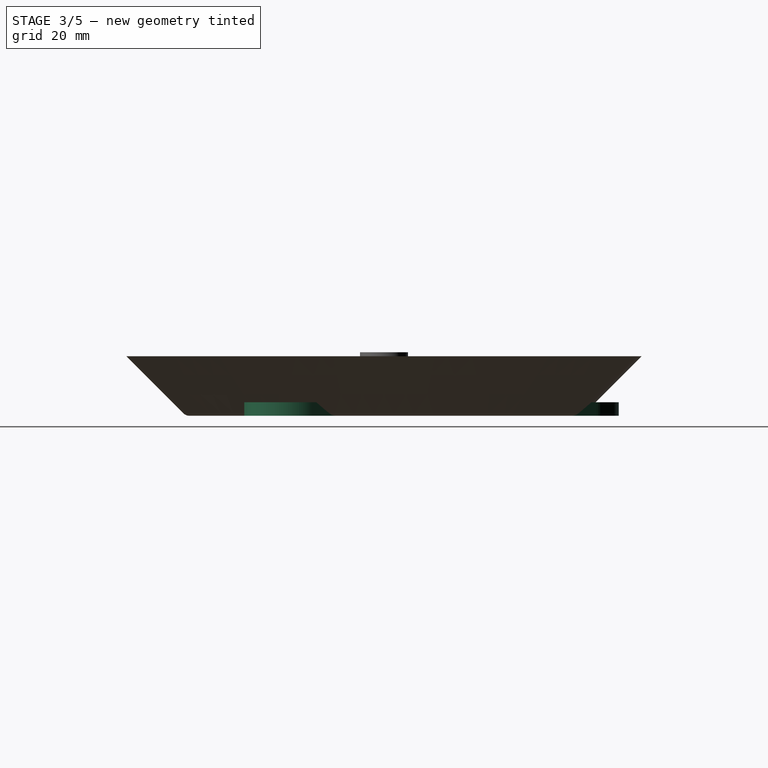
[diagram: stage 3 of 5 — right view after this stage's code; geometry added in this stage tinted green]
FEATURE [PartDesign::Body] Body004  label="ShorterHook"
  Group = -> [Sketch007,Pad007,Fillet004]
  Origin = -> Origin006
  Tip = -> Fillet004
FEATURE [Sketcher::SketchObject] Sketch008  label="LRMLA_Template"
  FullyConstrained = true
  MapMode = 5
  Support = -> [XY_Plane]
  expr: Constraints[80] = .Constraints.Rc + 2mm
  expr: .Constraints.Rc = .Constraints.Ri + .Constraints.Dist / 2 + 5mm
  sketch-geometry (43):
    g0: LineSegment StartX=-41.5 StartY=-23.96 StartZ=0 EndX=7.1e-15 EndY=47.9201 EndZ=0
    g1: LineSegment StartX=7.1e-15 StartY=47.9201 StartZ=0 EndX=41.5 EndY=-23.96 EndZ=0
    g2: LineSegment StartX=41.5 StartY=-23.96 StartZ=0 EndX=-41.5 EndY=-23.96 EndZ=0
    g3: Circle CenterX=0 CenterY=0 CenterZ=0 NormalX=0 NormalY=0 NormalZ=1 AngleXU=0 Radius=23.96
    g4: Circle CenterX=0 CenterY=0 CenterZ=0 NormalX=0 NormalY=0 NormalZ=1 AngleXU=0 Radius=63.5
    g5: LineSegment StartX=-49.554 StartY=-19.31 StartZ=0 EndX=-8.05404 EndY=52.5701 EndZ=0
    g6: LineSegment StartX=8.05404 StartY=52.5701 StartZ=0 EndX=49.554 EndY=-19.31 EndZ=0
    g7: LineSegment StartX=41.5 StartY=-33.26 StartZ=0 EndX=-41.5 EndY=-33.26 EndZ=0
    g8: ArcOfCircle CenterX=-41.5 CenterY=-23.96 CenterZ=0 NormalX=0 NormalY=0 NormalZ=1 AngleXU=0 Radius=9.3 StartAngle=2.61799 EndAngle=4.71239
    g9: ArcOfCircle CenterX=7.1e-15 CenterY=47.9201 CenterZ=0 NormalX=0 NormalY=0 NormalZ=1 AngleXU=0 Radius=9.3 StartAngle=0.523599 EndAngle=2.61799
    g10: ArcOfCircle CenterX=41.5 CenterY=-23.96 CenterZ=0 NormalX=0 NormalY=0 NormalZ=1 AngleXU=0 Radius=9.3 StartAngle=4.71239 EndAngle=6.80678
    g11: LineSegment StartX=7.1e-15 StartY=47.9201 StartZ=0 EndX=8.05404 EndY=52.5701 EndZ=0
    g12: LineSegment StartX=7.1e-15 StartY=47.9201 StartZ=0 EndX=-8.05404 EndY=52.5701 EndZ=0
    g13: LineSegment StartX=41.5 StartY=-23.96 StartZ=0 EndX=49.554 EndY=-19.31 EndZ=0
    g14: LineSegment StartX=41.5 StartY=-23.96 StartZ=0 EndX=41.5 EndY=-33.26 EndZ=0
    g15: LineSegment StartX=-41.5 StartY=-23.96 StartZ=0 EndX=-41.5 EndY=-33.26 EndZ=0
    g16: LineSegment StartX=-49.554 StartY=-19.31 StartZ=0 EndX=-41.5 EndY=-23.96 EndZ=0
    g17: LineSegment StartX=-9.78609 StartY=53.5701 StartZ=0 EndX=-51.2861 EndY=-18.31 EndZ=0
    g18: LineSegment StartX=-41.5 StartY=-35.26 StartZ=0 EndX=41.5 EndY=-35.26 EndZ=0
    g19: LineSegment StartX=51.2861 StartY=-18.31 StartZ=0 EndX=9.78609 EndY=53.5701 EndZ=0
    g20: ArcOfCircle CenterX=7.1e-15 CenterY=47.9201 CenterZ=0 NormalX=0 NormalY=0 NormalZ=1 AngleXU=0 Radius=11.3 StartAngle=0.523599 EndAngle=2.61799
    g21: ArcOfCircle CenterX=41.5 CenterY=-23.96 CenterZ=0 NormalX=0 NormalY=0 NormalZ=1 AngleXU=0 Radius=11.3 StartAngle=4.71239 EndAngle=6.80678
    g22: ArcOfCircle CenterX=-41.5 CenterY=-23.96 CenterZ=0 NormalX=0 NormalY=0 NormalZ=1 AngleXU=0 Radius=11.3 StartAngle=2.61799 EndAngle=4.71239
    g23: ArcOfCircle CenterX=3.8e-15 CenterY=49.9201 CenterZ=0 NormalX=0 NormalY=0 NormalZ=1 AngleXU=0 Radius=2.3 StartAngle=-9e-16 EndAngle=3.14159
    g24: ArcOfCircle CenterX=3.5e-15 CenterY=45.9201 CenterZ=0 NormalX=0 NormalY=0 NormalZ=1 AngleXU=0 Radius=2.3 StartAngle=3.14159 EndAngle=6.28319
    g25: LineSegment StartX=-2.3 StartY=49.9201 StartZ=0 EndX=-2.3 EndY=45.9201 EndZ=0
    g26: LineSegment StartX=2.3 StartY=49.9201 StartZ=0 EndX=2.3 EndY=45.9201 EndZ=0
    g27: LineSegment StartX=3.8e-15 StartY=49.9201 StartZ=0 EndX=3.5e-15 EndY=45.9201 EndZ=0
    g28: LineSegment StartX=43.2321 StartY=-24.96 StartZ=0 EndX=39.7679 EndY=-22.96 EndZ=0
    g29: ArcOfCircle CenterX=39.7679 CenterY=-22.96 CenterZ=0 NormalX=0 NormalY=0 NormalZ=1 AngleXU=0 Radius=2.3 StartAngle=1.0472 EndAngle=4.18879
    g30: ArcOfCircle CenterX=43.2321 CenterY=-24.96 CenterZ=0 NormalX=0 NormalY=0 NormalZ=1 AngleXU=0 Radius=2.3 StartAngle=4.18879 EndAngle=7.33038
    g31: LineSegment StartX=40.9179 StartY=-20.9682 StartZ=0 EndX=44.3821 EndY=-22.9682 EndZ=0
    g32: LineSegment StartX=38.6179 StartY=-24.9519 StartZ=0 EndX=42.0821 EndY=-26.9519 EndZ=0
    g33: LineSegment StartX=-43.2321 StartY=-24.96 StartZ=0 EndX=-39.7679 EndY=-22.96 EndZ=0
    g34: ArcOfCircle CenterX=-39.7679 CenterY=-22.96 CenterZ=0 NormalX=0 NormalY=0 NormalZ=1 AngleXU=0 Radius=2.3 StartAngle=5.23599 EndAngle=8.37758
    g35: ArcOfCircle CenterX=-43.2321 CenterY=-24.96 CenterZ=0 NormalX=0 NormalY=0 NormalZ=1 AngleXU=0 Radius=2.3 StartAngle=2.0944 EndAngle=5.23599
    g36: LineSegment StartX=-44.3821 StartY=-22.9682 StartZ=0 EndX=-40.9179 EndY=-20.9682 EndZ=0
    g37: LineSegment StartX=-42.0821 StartY=-26.9519 StartZ=0 EndX=-38.6179 EndY=-24.9519 EndZ=0
    g38: LineSegment StartX=-2.5 StartY=1.75 StartZ=0 EndX=2.5 EndY=1.75 EndZ=0
    g39: LineSegment StartX=2.5 StartY=1.75 StartZ=0 EndX=2.5 EndY=-1.75 EndZ=0
    g40: LineSegment StartX=2.5 StartY=-1.75 StartZ=0 EndX=-2.5 EndY=-1.75 EndZ=0
    g41: LineSegment StartX=-2.5 StartY=-1.75 StartZ=0 EndX=-2.5 EndY=1.75 EndZ=0
    g42: LineSegment StartX=-3e-16 StartY=1.75 StartZ=0 EndX=-3e-16 EndY=-1.75 EndZ=0
  constraints (109):
    c: Coincident(g0,g1)
    c: Coincident(g1,g2)
    c: Coincident(g2,g0)
    c: Equal(g0,g2)
    c: Equal(g2,g1)
    c: Distance(g0) = 83
    c: Tangent(g1,g3)
    c: Tangent(g3,g0)
    c: Tangent(g3,g2)
    c: Horizontal(g2)
    c: Coincident(g4,g3)
    c: Diameter(g4) = 127
    c: Coincident(g8,g0)
    c: Coincident(g8,g7)
    c: Coincident(g8,g5)
    c: Coincident(g9,g0)
    c: Coincident(g9,g5)
    c: Coincident(g9,g6)
    c: Coincident(g10,g1)
    c: Coincident(g10,g6)
    c: Coincident(g10,g7)
    c: Coincident(g11,g9)
    c: Coincident(g11,g6)
    c: Coincident(g12,g9)
    c: Coincident(g12,g5)
    c: Coincident(g13,g10)
    c: Coincident(g13,g6)
    c: Coincident(g14,g10)
    c: Coincident(g14,g7)
    c: Coincident(g15,g8)
    c: Coincident(g15,g7)
    c: Coincident(g16,g5)
    c: Equal(g12,g13)
    c: Equal(g14,g15)
    c: Equal(g15,g16)
    c: Perpendicular(g0,g16)
    c: Perpendicular(g0,g12)
    c: Perpendicular(g1,g11)
    c: Perpendicular(g1,g13)
    c: Perpendicular(g2,g14)
    c: Perpendicular(g2,g15)
    c: Horizontal(g18)
    c: PointOnObject(g19,g11)
    c: PointOnObject(g19,g13)
    c: PointOnObject(g18,g14)
    c: PointOnObject(g18,g15)
    c: PointOnObject(g17,g16)
    c: PointOnObject(g17,g12)
    c: Coincident(g20,g0)
    c: Coincident(g20,g17)
    c: Coincident(g20,g19)
    c: Coincident(g21,g1)
    c: Coincident(g21,g18)
    c: Coincident(g21,g19)
    c: Coincident(g22,g0)
    c: Coincident(g22,g17)
    c: Coincident(g22,g18)
    c: Equal(g20,g21)
    c: Tangent(g23,g26) = 1.5708
    c: Tangent(g23,g25) = -1.5708
    c: Tangent(g25,g24) = -1.5708
    c: Tangent(g26,g24) = 1.5708
    c: Equal(g23,g24)
    c: Coincident(g27,g23)
    c: Coincident(g27,g24)
    c: Symmetric(g24,g23,g0)
    c: Symmetric(g28,g28,g1)
    c: PointOnObject(g3,g28)
    c: Equal(g25,g26)
    c: PointOnObject(g3,g27)
    c: Equal(g27,g28)
    c: Coincident(g29,g28)
    c: Coincident(g30,g28)
    c: Tangent(g30,g31) = 1.5708
    c: Tangent(g30,g32) = -1.5708
    c: Tangent(g29,g32) = -1.5708
    c: Tangent(g29,g31) = 1.5708
    c: Equal(g24,g29)
    c: Equal(g29,g30)
    c: Radius(g8) = 9.3  'Rc'
    c: Radius(g22) = 11.3
    c: Symmetric(g33,g33,g0)
    c: PointOnObject(g3,g33)
    c: Equal(g33,g28)
    c: Coincident(g34,g33)
    c: Coincident(g35,g33)
    c: Tangent(g35,g37) = -1.5708
    c: Tangent(g34,g37) = -1.5708
    c: Tangent(g34,g36) = 1.5708
    c: Tangent(g35,g36) = 1.5708
    c: Equal(g35,g34)
    c: Equal(g34,g30)
    c: Coincident(g38,g39)
    c: Coincident(g39,g40)
    c: Coincident(g40,g41)
    c: Coincident(g41,g38)
    c: Horizontal(g38)
    c: Vertical(g39)
    c: Equal(g41,g39)
    c: Equal(g38,g40)
    c: Symmetric(g40,g38,g3)
    c: PointOnObject(g42,g38)
    c: PointOnObject(g42,g40)
    c: Symmetric(g38,g38,g42)
    c: Distance(g41) = 3.5
    c: Coincident(g3,g-1)  '__ANCHOR__'
    c: DistanceX(g38,g38) = 5
    c: Radius(g34) = 2.3  'Ri'
    c: Distance(g37) = 4  'Dist'
FEATURE [Sketcher::SketchObject] Sketch009  label="LRMLA_Base"
  ExternalGeometry = -> [Sketch008]
  FullyConstrained = true
  MapMode = 5
  Support = -> [XY_Plane]
  sketch-geometry (18):
    g0: ArcOfCircle CenterX=3.9e-15 CenterY=49.9201 CenterZ=0 NormalX=0 NormalY=0 NormalZ=1 AngleXU=0 Radius=2.3 StartAngle=6.28318 EndAngle=9.42478
    g1: ArcOfCircle CenterX=3.5e-15 CenterY=45.9201 CenterZ=0 NormalX=0 NormalY=0 NormalZ=1 AngleXU=0 Radius=2.3 StartAngle=3.1416 EndAngle=6.28318
    g2: ArcOfCircle CenterX=4.8e-15 CenterY=47.9201 CenterZ=0 NormalX=0 NormalY=0 NormalZ=1 AngleXU=0 Radius=11.3 StartAngle=0.523599 EndAngle=2.61799
    g3: ArcOfCircle CenterX=41.5 CenterY=-23.96 CenterZ=0 NormalX=0 NormalY=0 NormalZ=1 AngleXU=0 Radius=11.3 StartAngle=4.71239 EndAngle=6.80678
    g4: ArcOfCircle CenterX=-41.5 CenterY=-23.96 CenterZ=0 NormalX=0 NormalY=0 NormalZ=1 AngleXU=0 Radius=11.3 StartAngle=2.61799 EndAngle=4.71239
    g5: LineSegment StartX=-9.78609 StartY=53.5701 StartZ=0 EndX=-51.2861 EndY=-18.31 EndZ=0
    g6: LineSegment StartX=-41.5 StartY=-35.26 StartZ=0 EndX=41.5 EndY=-35.26 EndZ=0
    g7: LineSegment StartX=51.2861 StartY=-18.31 StartZ=0 EndX=9.78609 EndY=53.5701 EndZ=0
    g8: LineSegment StartX=-2.3 StartY=49.9201 StartZ=0 EndX=-2.3 EndY=45.9201 EndZ=0
    g9: LineSegment StartX=2.3 StartY=49.9201 StartZ=0 EndX=2.3 EndY=45.9201 EndZ=0
    g10: ArcOfCircle CenterX=43.232 CenterY=-24.96 CenterZ=0 NormalX=0 NormalY=0 NormalZ=1 AngleXU=0 Radius=2.3 StartAngle=4.18879 EndAngle=7.33038
    g11: ArcOfCircle CenterX=39.768 CenterY=-22.96 CenterZ=0 NormalX=0 NormalY=0 NormalZ=1 AngleXU=0 Radius=2.3 StartAngle=1.0472 EndAngle=4.18879
    g12: ArcOfCircle CenterX=-43.232 CenterY=-24.96 CenterZ=0 NormalX=0 NormalY=0 NormalZ=1 AngleXU=0 Radius=2.3 StartAngle=2.0944 EndAngle=5.23598
    g13: ArcOfCircle CenterX=-39.768 CenterY=-22.96 CenterZ=0 NormalX=0 NormalY=0 NormalZ=1 AngleXU=0 Radius=2.3 StartAngle=5.23599 EndAngle=8.37758
    g14: LineSegment StartX=-42.0821 StartY=-26.9519 StartZ=0 EndX=-38.6179 EndY=-24.9519 EndZ=0
    g15: LineSegment StartX=-40.9179 StartY=-20.9682 StartZ=0 EndX=-44.3821 EndY=-22.9682 EndZ=0
    g16: LineSegment StartX=40.9179 StartY=-20.9682 StartZ=0 EndX=44.3821 EndY=-22.9682 EndZ=0
    g17: LineSegment StartX=38.6179 StartY=-24.9519 StartZ=0 EndX=42.0821 EndY=-26.9519 EndZ=0
  constraints (45):
    c: Coincident(g1,g-11)
    c: Coincident(g1,g-11)
    c: Equal(g1,g-11)
    c: Coincident(g2,g-3)
    c: Coincident(g2,g-3)
    c: Equal(g2,g-3)
    c: Coincident(g3,g-4)
    c: Coincident(g3,g-4)
    c: Equal(g3,g-4)
    c: Coincident(g4,g-5)
    c: Coincident(g4,g-5)
    c: Equal(g4,g-5)
    c: Coincident(g5,g2)
    c: Coincident(g5,g4)
    c: Coincident(g6,g4)
    c: Coincident(g6,g3)
    c: Coincident(g7,g3)
    c: Coincident(g7,g2)
    c: Coincident(g8,g0)
    c: Coincident(g8,g1)
    c: Coincident(g9,g0)
    c: Coincident(g9,g1)
    c: Coincident(g10,g-9)
    c: Coincident(g10,g-9)
    c: Equal(g10,g-9)
    c: Coincident(g11,g-8)
    c: Coincident(g11,g-8)
    c: Coincident(g12,g-6)
    c: Coincident(g12,g-6)
    c: Coincident(g13,g-7)
    c: Coincident(g13,g-7)
    c: Equal(g13,g-7)
    c: Equal(g12,g-6)
    c: Equal(g11,g-8)
    c: Coincident(g14,g12)
    c: Coincident(g14,g13)
    c: Coincident(g15,g13)
    c: Coincident(g15,g12)
    c: Coincident(g16,g11)
    c: Coincident(g16,g10)
    c: Coincident(g17,g11)
    c: Coincident(g17,g10)
    c: Coincident(g-10,g0)
    c: Coincident(g-10,g0)
    c: Equal(g0,g-10)
FEATURE [Sketcher::SketchObject] Sketch010  label="LRMLA_Verge"
  AttachmentOffset = pos=(0,0,1.4) rot=(0,0,1;0rad)
  ExternalGeometry = -> [Sketch008]
  FullyConstrained = true
  MapMode = 5
  Placement = pos=(0,0,1.4) rot=(0,0,1;0rad)
  Support = -> [XY_Plane]
  expr: .AttachmentOffset.Base.z = <<LRMLA_Base>>.Placement.Base.z + <<LRMLA_Base_>>.Length
  sketch-geometry (12):
    g0: ArcOfCircle CenterX=-41.5 CenterY=-23.96 CenterZ=0 NormalX=0 NormalY=0 NormalZ=1 AngleXU=0 Radius=9.3 StartAngle=2.61799 EndAngle=4.71239
    g1: ArcOfCircle CenterX=-41.5 CenterY=-23.96 CenterZ=0 NormalX=0 NormalY=0 NormalZ=1 AngleXU=0 Radius=11.3 StartAngle=2.61799 EndAngle=4.71239
    g2: ArcOfCircle CenterX=41.5 CenterY=-23.96 CenterZ=0 NormalX=0 NormalY=0 NormalZ=1 AngleXU=0 Radius=9.3 StartAngle=4.71239 EndAngle=6.80678
    g3: ArcOfCircle CenterX=41.5 CenterY=-23.96 CenterZ=0 NormalX=0 NormalY=0 NormalZ=1 AngleXU=0 Radius=11.3 StartAngle=4.71239 EndAngle=6.80678
    g4: ArcOfCircle CenterX=2.4e-15 CenterY=47.9201 CenterZ=0 NormalX=0 NormalY=0 NormalZ=1 AngleXU=0 Radius=9.3 StartAngle=0.523599 EndAngle=2.61799
    g5: ArcOfCircle CenterX=3e-15 CenterY=47.9201 CenterZ=0 NormalX=0 NormalY=0 NormalZ=1 AngleXU=0 Radius=11.3 StartAngle=0.523599 EndAngle=2.61799
    g6: LineSegment StartX=-9.78609 StartY=53.5701 StartZ=0 EndX=-51.2861 EndY=-18.31 EndZ=0
    g7: LineSegment StartX=-49.554 StartY=-19.31 StartZ=0 EndX=-8.05404 EndY=52.5701 EndZ=0
    g8: LineSegment StartX=9.78609 StartY=53.5701 StartZ=0 EndX=51.2861 EndY=-18.31 EndZ=0
    g9: LineSegment StartX=49.554 StartY=-19.31 StartZ=0 EndX=8.05404 EndY=52.5701 EndZ=0
    g10: LineSegment StartX=-41.5 StartY=-33.26 StartZ=0 EndX=41.5 EndY=-33.26 EndZ=0
    g11: LineSegment StartX=41.5 StartY=-35.26 StartZ=0 EndX=-41.5 EndY=-35.26 EndZ=0
  constraints (30):
    c: Coincident(g0,g-5)
    c: Coincident(g0,g-5)
    c: Coincident(g1,g-6)
    c: Coincident(g2,g-7)
    c: Coincident(g2,g-7)
    c: Equal(g2,g-7)
    c: Coincident(g3,g-8)
    c: Coincident(g3,g-8)
    c: Equal(g3,g-8)
    c: Coincident(g4,g-4)
    c: Coincident(g4,g-4)
    c: Coincident(g5,g-3)
    c: Coincident(g5,g-3)
    c: Equal(g5,g-3)
    c: Equal(g4,g-4)
    c: Coincident(g6,g5)
    c: Coincident(g6,g1)
    c: Coincident(g7,g0)
    c: Coincident(g7,g4)
    c: Coincident(g8,g5)
    c: Coincident(g8,g3)
    c: Coincident(g9,g2)
    c: Coincident(g9,g4)
    c: Coincident(g10,g0)
    c: Coincident(g10,g2)
    c: Coincident(g11,g3)
    c: Coincident(g11,g1)
    c: Coincident(g1,g-6)
    c: Equal(g0,g-5)
    c: Equal(g1,g-6)
FEATURE [Sketcher::SketchObject] Sketch011  label="LRMLA_Hook"
  AttachmentOffset = pos=(0,1.4,0) rot=(0,0,1;0rad)
  ExternalGeometry = -> [Sketch008]
  FullyConstrained = true
  MapMode = 5
  Placement = pos=(0,-1.449e-13,1.4) rot=(1,0,0;1.5708rad)
  Support = -> [XZ_Plane]
  expr: .AttachmentOffset.Base.y = <<LRMLA_Base>>.Placement.Base.z + <<LRMLA_Verge>>.Placement.Base.z
  sketch-geometry (13):
    g0: LineSegment StartX=-2.5 StartY=0 StartZ=0 EndX=2.5 EndY=0 EndZ=0
    g1: LineSegment StartX=2.5 StartY=0 StartZ=0 EndX=2.5 EndY=6 EndZ=0
    g2: LineSegment StartX=2.5 StartY=6 StartZ=0 EndX=-2.5 EndY=6 EndZ=0
    g3: LineSegment StartX=-2.5 StartY=6 StartZ=0 EndX=-2.5 EndY=0 EndZ=0
    g4: Circle CenterX=-2.5 CenterY=6 CenterZ=0 NormalX=0 NormalY=0 NormalZ=1 AngleXU=0 Radius=3.6
    g5: Circle CenterX=2.5 CenterY=6 CenterZ=0 NormalX=0 NormalY=0 NormalZ=1 AngleXU=0 Radius=3.6
    g6: LineSegment StartX=-2.5 StartY=9.6 StartZ=0 EndX=2.5 EndY=9.6 EndZ=0
    g7: LineSegment StartX=-2.5 StartY=0 StartZ=0 EndX=-10.5 EndY=0 EndZ=0
    g8: LineSegment StartX=2.5 StartY=0 StartZ=0 EndX=10.5 EndY=0 EndZ=0
    g9: LineSegment StartX=-10.5 StartY=0 StartZ=0 EndX=-5.55198 EndY=7.9093 EndZ=0
    g10: LineSegment StartX=10.5 StartY=0 StartZ=0 EndX=5.55198 EndY=7.9093 EndZ=0
    g11: ArcOfCircle CenterX=-2.5 CenterY=6 CenterZ=0 NormalX=0 NormalY=0 NormalZ=1 AngleXU=0 Radius=3.6 StartAngle=1.5708 EndAngle=2.58257
    g12: ArcOfCircle CenterX=2.5 CenterY=6 CenterZ=0 NormalX=0 NormalY=0 NormalZ=1 AngleXU=0 Radius=3.6 StartAngle=0.559027 EndAngle=1.5708
  constraints (34):
    c: Coincident(g0,g1)
    c: Coincident(g1,g2)
    c: Coincident(g2,g3)
    c: Coincident(g3,g0)
    c: Horizontal(g0)
    c: Horizontal(g2)
    c: Vertical(g1)
    c: Vertical(g3)
    c: DistanceY(g3,g3) = 6
    c: PointOnObject(g0,g-1)
    c: PointOnObject(g-3,g3)
    c: PointOnObject(g-3,g1)
    c: Coincident(g4,g2)
    c: Coincident(g5,g1)
    c: Radius(g4) = 3.6
    c: Coincident(g7,g0)
    c: Horizontal(g7)
    c: Coincident(g8,g0)
    c: Horizontal(g8)
    c: Equal(g8,g7)
    c: Coincident(g9,g7)
    c: Tangent(g9,g4) = 1.5708
    c: Coincident(g10,g8)
    c: Tangent(g10,g5) = -1.5708
    c: Tangent(g6,g4) = 1.5708
    c: Tangent(g6,g5) = 1.5708
    c: Coincident(g11,g2)
    c: Coincident(g11,g9)
    c: Coincident(g11,g6)
    c: Coincident(g12,g1)
    c: Coincident(g12,g6)
    c: Coincident(g12,g10)
    c: Equal(g5,g4)
    c: DistanceX(g7,g7) = 8
FEATURE [PartDesign::Pad] Pad009  label="LRMLA_Base_"
  AllowMultiFace = false
  Direction = (1,1,1)
  Length = 1.4
  Length2 = 100
  Profile = -> Sketch009
  Type = 0
FEATURE [PartDesign::Pad] Pad008  label="LRMLA_Verge_"
  AllowMultiFace = false
  BaseFeature = -> Pad009
  Direction = (1,1,1)
  Length = 2
  Length2 = 100
  Profile = -> Sketch010
  Refine = true
  Type = 0
FEATURE [PartDesign::Pad] Pad010  label="LRMLA_Hook_"
  AllowMultiFace = false
  BaseFeature = -> Pad008
  Direction = (1,1,1)
  Length = 3.5
  Length2 = 100
  Midplane = true
  Profile = -> Sketch011
  Type = 0
FEATURE [Sketcher::SketchObject] Sketch016  label="GRMLA_Hook"
  AttachmentOffset = pos=(0,1.4,0) rot=(0,0,1;0rad)
  ExternalGeometry = -> [Sketch013]
  FullyConstrained = true
  MapMode = 5
  Placement = pos=(0,-3e-16,1.4) rot=(1,0,0;1.5708rad)
  Support = -> [XZ_Plane006]
  expr: .AttachmentOffset.Base.y = <<GRLA_Base>>.Placement.Base.z + <<GRLA_Verge>>.Placement.Base.z
  sketch-geometry (11):
    g0: LineSegment StartX=-2.5 StartY=6 StartZ=0 EndX=2.5 EndY=6 EndZ=0
    g1: LineSegment StartX=2.5 StartY=6 StartZ=0 EndX=2.5 EndY=0 EndZ=0
    g2: LineSegment StartX=2.5 StartY=0 StartZ=0 EndX=-2.5 EndY=0 EndZ=0
    g3: LineSegment StartX=-2.5 StartY=0 StartZ=0 EndX=-2.5 EndY=6 EndZ=0
    g4: ArcOfCircle CenterX=-2.5 CenterY=6 CenterZ=0 NormalX=0 NormalY=0 NormalZ=1 AngleXU=0 Radius=3.6 StartAngle=1.5708 EndAngle=2.58257
    g5: ArcOfCircle CenterX=2.5 CenterY=6 CenterZ=0 NormalX=0 NormalY=0 NormalZ=1 AngleXU=0 Radius=3.6 StartAngle=0.559027 EndAngle=1.5708
    g6: LineSegment StartX=-2.5 StartY=9.6 StartZ=0 EndX=2.5 EndY=9.6 EndZ=0
    g7: LineSegment StartX=-5.55198 StartY=7.9093 StartZ=0 EndX=-10.5 EndY=0 EndZ=0
    g8: LineSegment StartX=-10.5 StartY=0 StartZ=0 EndX=-2.5 EndY=0 EndZ=0
    g9: LineSegment StartX=5.55198 StartY=7.9093 StartZ=0 EndX=10.5 EndY=0 EndZ=0
    g10: LineSegment StartX=10.5 StartY=0 StartZ=0 EndX=2.5 EndY=0 EndZ=0
  constraints (28):
    c: Coincident(g0,g1)
    c: Coincident(g1,g2)
    c: Coincident(g2,g3)
    c: Coincident(g3,g0)
    c: Horizontal(g0)
    c: Horizontal(g2)
    c: Vertical(g1)
    c: Vertical(g3)
    c: PointOnObject(g1,g-1)
    c: PointOnObject(g-3,g3)
    c: PointOnObject(g-3,g1)
    c: DistanceY(g3,g3) = 6
    c: Coincident(g4,g0)
    c: Coincident(g5,g0)
    c: Equal(g4,g5)
    c: Radius(g4) = 3.6
    c: Tangent(g5,g6) = 1.5708
    c: Tangent(g4,g6) = 1.5708
    c: Tangent(g4,g7) = -1.5708
    c: Coincident(g7,g8)
    c: Coincident(g8,g3)
    c: Horizontal(g8)
    c: Tangent(g5,g9) = 1.5708
    c: Coincident(g9,g10)
    c: Coincident(g10,g1)
    c: Horizontal(g10)
    c: Equal(g8,g10)
    c: DistanceX(g8,g8) = 8
FEATURE [PartDesign::Pad] Pad013  label="GRMLA_Hook_"
  AllowMultiFace = false
  BaseFeature = -> Pad012
  Direction = (1,1,1)
  Length = 3.5
  Length2 = 100
  Midplane = true
  Profile = -> Sketch016
  Type = 0
FEATURE [PartDesign::Fillet] Fillet006  label="GRLA_Fillet"
  Base = -> Pad013 [Edge76,Edge73,Edge77,Edge110,Edge102,Edge80,Edge86,Edge85,Edge84,Edge82,Edge79,Edge98,Edge106]
  BaseFeature = -> Pad013
  Radius = 1.4
  SupportTransform = false
FEATURE [PartDesign::Chamfer] Chamfer  label="GRLA_Chamfer"
  Angle = 45
  Base = -> Fillet006 [Edge20,Edge12,Edge13]
  BaseFeature = -> Fillet006
  ChamferType = 0
  FlipDirection = false
  Size = 1.1
  Size2 = 1
  SupportTransform = false
  expr: Size = <<GRLA_Base_>>.Length - 0.3mm
FEATURE [Sketcher::SketchObject] Sketch017  label="GRLA_Holes"
  AttachmentOffset = pos=(0,0,1.4) rot=(0,0,1;0rad)
  ExternalGeometry = -> [Sketch013]
  FullyConstrained = true
  MapMode = 5
  Placement = pos=(0,0,1.4) rot=(0,0,1;0rad)
  Support = -> [XY_Plane006]
  expr: .AttachmentOffset.Base.z = <<GRLA_Verge>>.Placement.Base.z
  sketch-geometry (6):
    g0: LineSegment StartX=-2.5 StartY=-1.75 StartZ=0 EndX=2.5 EndY=-1.75 EndZ=0
    g1: LineSegment StartX=2.5 StartY=-1.75 StartZ=0 EndX=2.5 EndY=1.75 EndZ=0
    g2: LineSegment StartX=2.5 StartY=1.75 StartZ=0 EndX=-2.5 EndY=1.75 EndZ=0
    g3: LineSegment StartX=-2.5 StartY=1.75 StartZ=0 EndX=-2.5 EndY=-1.75 EndZ=0
    g4: Circle CenterX=-4e-16 CenterY=11.75 CenterZ=0 NormalX=0 NormalY=0 NormalZ=1 AngleXU=0 Radius=4
    g5: LineSegment StartX=-4e-16 StartY=1.75 StartZ=0 EndX=-4e-16 EndY=11.75 EndZ=0
  constraints (13):
    c: Coincident(g0,g1)
    c: Coincident(g1,g2)
    c: Coincident(g2,g3)
    c: Coincident(g3,g0)
    c: Coincident(g0,g-3)
    c: Coincident(g0,g-3)
    c: Coincident(g2,g-4)
    c: Coincident(g1,g-4)
    c: Radius(g4) = 4
    c: PointOnObject(g5,g2)
    c: Coincident(g5,g4)
    c: Symmetric(g2,g1,g5)
    c: DistanceY(g5,g5) = 10
FEATURE [PartDesign::Pocket] Pocket  label="GRLA_Holes_"
  AllowMultiFace = false
  BaseFeature = -> Chamfer
  Length = 5
  Length2 = 100
  Profile = -> Sketch017
  Type = 0
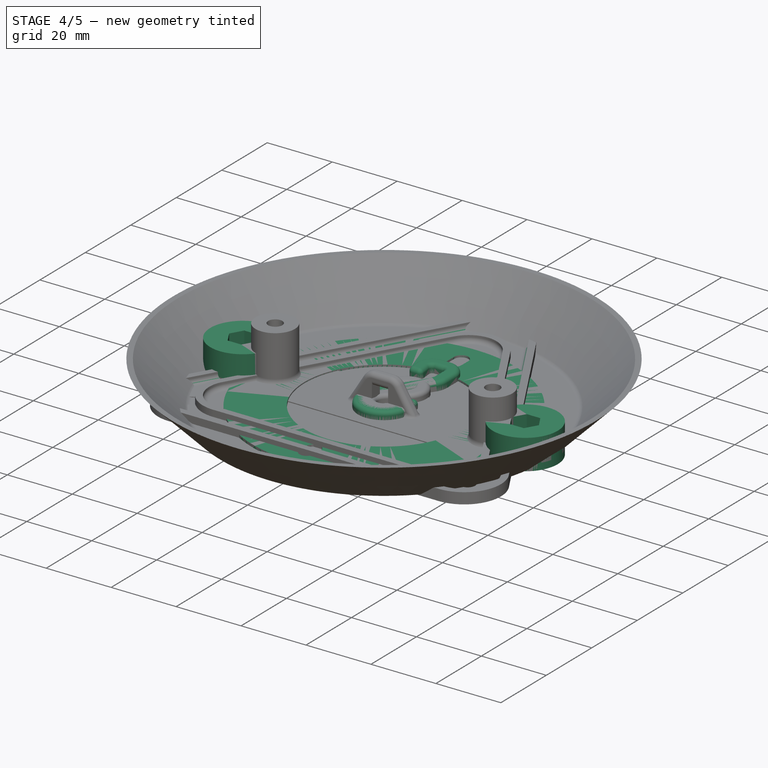
[diagram: stage 4 of 5 — iso view after this stage's code; geometry added in this stage tinted green]
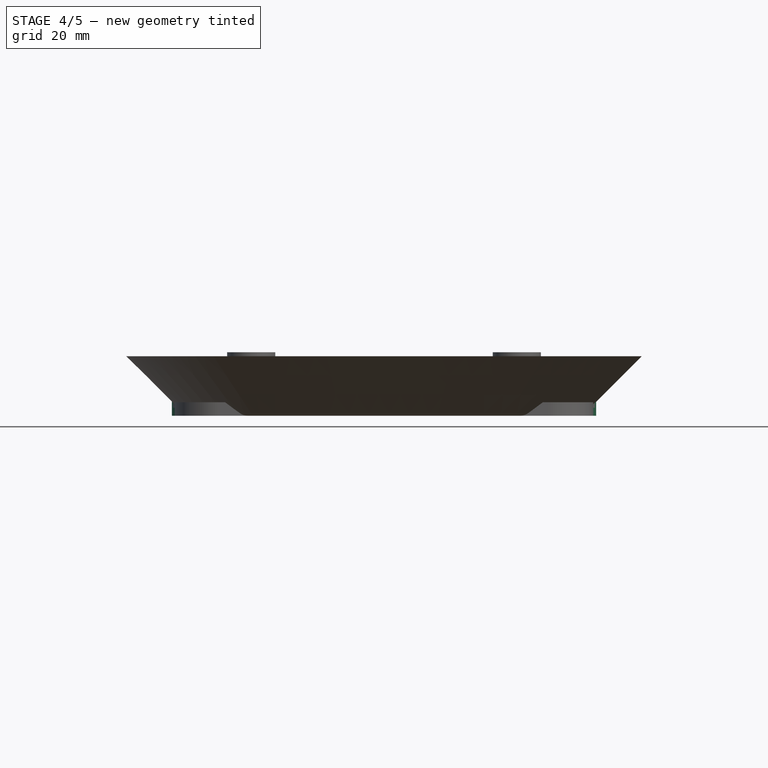
[diagram: stage 4 of 5 — front view after this stage's code; geometry added in this stage tinted green]
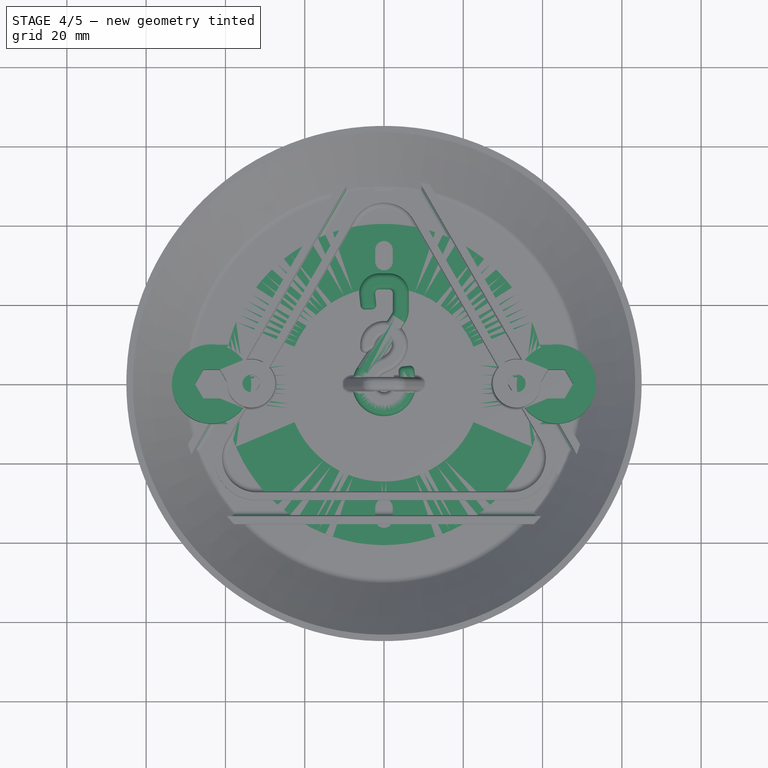
[diagram: stage 4 of 5 — top view after this stage's code; geometry added in this stage tinted green]
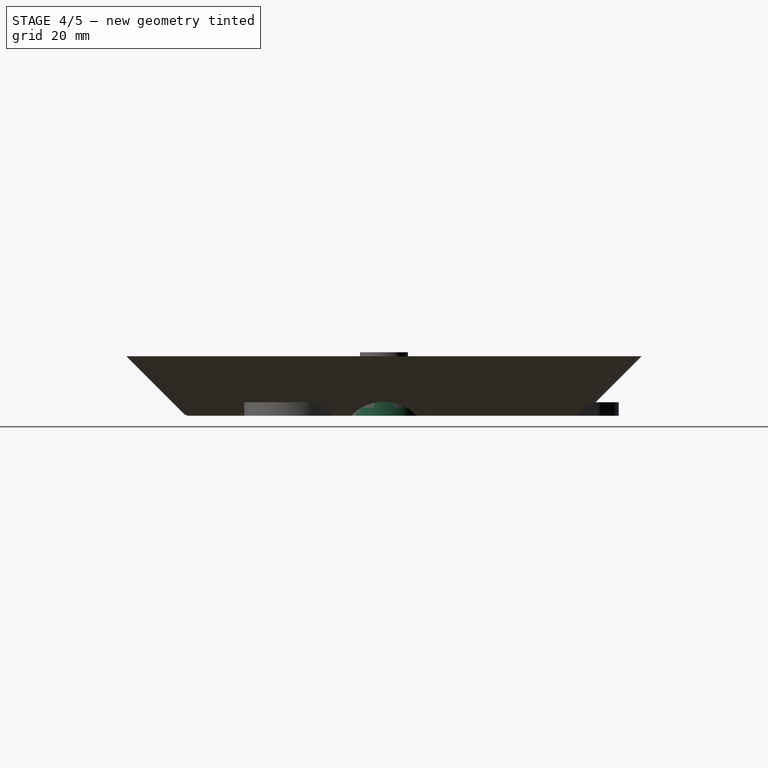
[diagram: stage 4 of 5 — right view after this stage's code; geometry added in this stage tinted green]
FEATURE [PartDesign::Body] Body001  label="HookBody"
  Group = -> [Sketch001,Pad001,Fillet003]
  Origin = -> Origin002
  Tip = -> Fillet003
FEATURE [Spreadsheet::Sheet] Spreadsheet001  label="Screws"
  cells = B2=M3Radius; C2(M3Radius)==1.75mm; B3=M3HeadRadius; C3(M3HeadRadius)==3mm; B4=M3HeadHeight; C4(M3HeadHeight)==3.4mm; B5=M3NutRadius; C5(M3NutRadius)==3.4mm; B6=M3NutHeight; C6(M3NutHeight)==2.6mm; B7=M3NutDuctWidth; C7(M3NutDuctWidth)==6mm; B8=M4Radius; C8(M4Radius)==2.2mm; B9=M4HeadRadius; C9(M4HeadRadius)==3.7mm; B10=M4HeadHeight; C10(M4HeadHeight)==4mm; B11=M4NutRadius; C11(M4NutRadius)==4.2mm; B12=M4NutHeight; C12(M4NutHeight)==3.3mm; B13=M5Radius; C13(M5Radius)==2.66mm; B14=M5HeadRadius; C14(M5HeadRadius)==4.5mm; B15=M5HeadHeight; C15(M5HeadHeight)==5mm; B16=M5NutRadius; C16(M5NutRadius)==4.75mm; B17=M5NutHeight; C17(M5NutHeight)==4mm
FEATURE [Sketcher::SketchObject] Sketch003  label="UFOBase"
  FullyConstrained = false
  MapMode = 5
  Support = -> [XY_Plane005]
  expr: Constraints[3] = <<Screws>>.M4Radius
  expr: Constraints[4] = Spreadsheet.ScrewHoleExtra
  expr: Constraints[41] = .Constraints.DeckScrewDistance / 2 - 8mm
  expr: .Constraints.DeckScrewDistance = Spreadsheet.ScrewDistance
  expr: Constraints[42] = .Constraints.DeckScrewDistance / 2 + 8mm
  expr: .Constraints.UFONutRadius = <<Screws>>.M4NutRadius
  expr: .Constraints.UFOScrewDistance = Spreadsheet.UFOScrewDistance
  sketch-geometry (42):
    g0: ArcOfCircle CenterX=0 CenterY=-34 CenterZ=0 NormalX=0 NormalY=0 NormalZ=1 AngleXU=0 Radius=2.2 StartAngle=3.14159 EndAngle=6.28319
    g1: ArcOfCircle CenterX=0 CenterY=-31 CenterZ=0 NormalX=0 NormalY=0 NormalZ=1 AngleXU=0 Radius=2.2 StartAngle=0 EndAngle=3.14159
    g2: LineSegment StartX=2.2 StartY=-34 StartZ=0 EndX=2.2 EndY=-31 EndZ=0
    g3: LineSegment StartX=-2.2 StartY=-34 StartZ=0 EndX=-2.2 EndY=-31 EndZ=0
    g4: GeomPoint X=0 Y=-32.5 Z=0
    g5: LineSegment StartX=-2.2 StartY=-31 StartZ=0 EndX=2.2 EndY=-31 EndZ=0
    g6: LineSegment StartX=-2.2 StartY=-34 StartZ=0 EndX=2.2 EndY=-34 EndZ=0
    g7: ArcOfCircle CenterX=0 CenterY=34 CenterZ=0 NormalX=0 NormalY=0 NormalZ=1 AngleXU=0 Radius=2.2 StartAngle=0 EndAngle=3.14159
    g8: ArcOfCircle CenterX=0 CenterY=31 CenterZ=0 NormalX=0 NormalY=0 NormalZ=1 AngleXU=0 Radius=2.2 StartAngle=3.14159 EndAngle=6.28319
    g9: LineSegment StartX=2.2 StartY=34 StartZ=0 EndX=2.2 EndY=31 EndZ=0
    g10: LineSegment StartX=-2.2 StartY=34 StartZ=0 EndX=-2.2 EndY=31 EndZ=0
    g11: GeomPoint X=0 Y=32.5 Z=0
    g12: LineSegment StartX=-2.2 StartY=31 StartZ=0 EndX=2.2 EndY=31 EndZ=0
    g13: LineSegment StartX=-2.2 StartY=34 StartZ=0 EndX=2.2 EndY=34 EndZ=0
    g14: Circle CenterX=0 CenterY=0 CenterZ=0 NormalX=0 NormalY=0 NormalZ=1 AngleXU=0 Radius=24.5
    g15: ArcOfCircle CenterX=0 CenterY=0 CenterZ=0 NormalX=0 NormalY=0 NormalZ=1 AngleXU=0 Radius=40.5 StartAngle=3.39109 EndAngle=6.03369
    g16: ArcOfCircle CenterX=0 CenterY=0 CenterZ=0 NormalX=0 NormalY=0 NormalZ=1 AngleXU=0 Radius=40.5 StartAngle=0.249494 EndAngle=2.8921
    g17: LineSegment StartX=-39.246 StartY=10 StartZ=0 EndX=-39.246 EndY=-10 EndZ=0
    g18: LineSegment StartX=-39.246 StartY=10 StartZ=0 EndX=39.246 EndY=10 EndZ=0
    g19: LineSegment StartX=-39.246 StartY=-10 StartZ=0 EndX=39.246 EndY=-10 EndZ=0
    g20: LineSegment StartX=-39.246 StartY=-10 StartZ=0 EndX=-43.5 EndY=-10 EndZ=0
    g21: LineSegment StartX=-43.5 StartY=-10 StartZ=0 EndX=-43.5 EndY=10 EndZ=0
    g22: LineSegment StartX=-43.5 StartY=10 StartZ=0 EndX=-39.246 EndY=10 EndZ=0
    g23: LineSegment StartX=39.246 StartY=10 StartZ=0 EndX=43.5 EndY=10 EndZ=0
    g24: LineSegment StartX=43.5 StartY=10 StartZ=0 EndX=43.5 EndY=-10 EndZ=0
    g25: LineSegment StartX=43.5 StartY=-10 StartZ=0 EndX=39.246 EndY=-10 EndZ=0
    g26: LineSegment StartX=-41.4 StartY=-3.63731 StartZ=0 EndX=-39.3 EndY=1.674e-13 EndZ=0
    g27: LineSegment StartX=-39.3 StartY=1.673e-13 StartZ=0 EndX=-41.4 EndY=3.63731 EndZ=0
    g28: LineSegment StartX=-41.4 StartY=3.63731 StartZ=0 EndX=-45.6 EndY=3.63731 EndZ=0
    g29: LineSegment StartX=-45.6 StartY=3.63731 StartZ=0 EndX=-47.7 EndY=4.66e-14 EndZ=0
    g30: LineSegment StartX=-47.7 StartY=4.67e-14 StartZ=0 EndX=-45.6 EndY=-3.63731 EndZ=0
    g31: LineSegment StartX=-45.6 StartY=-3.63731 StartZ=0 EndX=-41.4 EndY=-3.63731 EndZ=0
    g32: Circle CenterX=-43.5 CenterY=0 CenterZ=0 NormalX=0 NormalY=0 NormalZ=1 AngleXU=0 Radius=4.2
    g33: LineSegment StartX=45.6 StartY=-3.63731 StartZ=0 EndX=47.7 EndY=4.62e-14 EndZ=0
    g34: LineSegment StartX=47.7 StartY=4.63e-14 StartZ=0 EndX=45.6 EndY=3.63731 EndZ=0
    g35: LineSegment StartX=45.6 StartY=3.63731 StartZ=0 EndX=41.4 EndY=3.63731 EndZ=0
    g36: LineSegment StartX=41.4 StartY=3.63731 StartZ=0 EndX=39.3 EndY=1.634e-13 EndZ=0
    g37: LineSegment StartX=39.3 StartY=1.635e-13 StartZ=0 EndX=41.4 EndY=-3.63731 EndZ=0
    g38: LineSegment StartX=41.4 StartY=-3.63731 StartZ=0 EndX=45.6 EndY=-3.63731 EndZ=0
    g39: Circle CenterX=43.5 CenterY=0 CenterZ=0 NormalX=0 NormalY=0 NormalZ=1 AngleXU=0 Radius=4.2
    g40: ArcOfCircle CenterX=-43.5 CenterY=0 CenterZ=0 NormalX=0 NormalY=0 NormalZ=1 AngleXU=0 Radius=10 StartAngle=1.5708 EndAngle=4.71239
    g41: ArcOfCircle CenterX=43.5 CenterY=0 CenterZ=0 NormalX=0 NormalY=0 NormalZ=1 AngleXU=0 Radius=10 StartAngle=4.71239 EndAngle=7.85398
  constraints (108):
    c: Vertical(g2)
    c: Equal(g0,g1)
    c: PointOnObject(g0,g-2)
    c: Radius(g1) = 2.2
    c: DistanceY(g2,g2) = 3
    c: Symmetric(g1,g0,g4)
    c: Coincident(g5,g1)
    c: Coincident(g5,g1)
    c: Horizontal(g5)
    c: Coincident(g6,g0)
    c: Coincident(g6,g0)
    c: Horizontal(g6)
    c: PointOnObject(g0,g6)
    c: PointOnObject(g1,g5)
    c: Coincident(g1,g3)
    c: Coincident(g1,g2)
    c: Coincident(g0,g2)
    c: Coincident(g0,g3)
    c: Vertical(g9)
    c: Equal(g7,g8)
    c: Symmetric(g8,g7,g11)
    c: Coincident(g12,g8)
    c: Coincident(g12,g8)
    c: Horizontal(g12)
    c: Coincident(g13,g7)
    c: Coincident(g13,g7)
    c: Horizontal(g13)
    c: PointOnObject(g7,g13)
    c: PointOnObject(g8,g12)
    c: Coincident(g8,g10)
    c: Coincident(g8,g9)
    c: Coincident(g7,g9)
    c: Coincident(g7,g10)
    c: Equal(g2,g9)
    c: Symmetric(g4,g11,g-1)
    c: DistanceY(g4,g11) = 65  'DeckScrewDistance'
    c: Coincident(g14,g-1)
    c: Coincident(g15,g-1)
    c: Coincident(g16,g-1)
    c: Equal(g1,g8)
    c: Equal(g16,g15)
    c: Radius(g14) = 24.5
    c: Radius(g16) = 40.5
    c: Coincident(g17,g16)
    c: Coincident(g17,g15)
    c: Vertical(g17)
    c: Coincident(g18,g16)
    c: Coincident(g18,g16)
    c: Horizontal(g18)
    c: Coincident(g19,g15)
    c: Horizontal(g19)
    c: Coincident(g19,g15)
    c: Coincident(g20,g15)
    c: Horizontal(g20)
    c: Coincident(g21,g20)
    c: Vertical(g21)
    c: Coincident(g22,g21)
    c: Coincident(g22,g16)
    c: Horizontal(g22)
    c: Coincident(g23,g16)
    c: Horizontal(g23)
    c: Coincident(g24,g23)
    c: Vertical(g24)
    c: Coincident(g25,g24)
    c: Coincident(g25,g15)
    c: Horizontal(g25)
    c: Coincident(g26,g27)
    c: Coincident(g27,g28)
    c: Coincident(g28,g29)
    c: Coincident(g29,g30)
    c: Coincident(g30,g31)
    c: Coincident(g31,g26)
    c: Equal(g26, g27-g31) x5
    c: PointOnObject(g26,g32)
    c: PointOnObject(g27,g32)
    c: PointOnObject(g28,g32)
    c: PointOnObject(g29,g32)
    c: PointOnObject(g30,g32)
    c: PointOnObject(g31,g32)
    c: PointOnObject(g32,g-1)
    c: Coincident(g33,g34)
    c: Coincident(g34,g35)
    c: Coincident(g35,g36)
    c: Coincident(g36,g37)
    c: Coincident(g37,g38)
    c: Coincident(g38,g33)
    c: Equal(g33, g34-g38) x5
    c: PointOnObject(g33,g39)
    c: PointOnObject(g34,g39)
    c: PointOnObject(g35,g39)
    c: PointOnObject(g36,g39)
    c: PointOnObject(g37,g39)
    c: PointOnObject(g38,g39)
    c: Equal(g39,g32)
    c: Radius(g32) = 4.2  'UFONutRadius'
    c: Horizontal(g28)
    c: Horizontal(g35)
    c: Symmetric(g32,g39,g-2)
    c: DistanceX(g32,g39) = 87  'UFOScrewDistance'
    c: PointOnObject(g32,g21)
    c: PointOnObject(g39,g24)
    c: Coincident(g40,g32)
    c: Coincident(g40,g20)
    c: PointOnObject(g40,g21)
    c: Coincident(g41,g39)
    c: Coincident(g41,g24)
    c: PointOnObject(g41,g24)
    c: Radius(g40) = 10  'UFOArmRadius'
FEATURE [PartDesign::Pad] Pad003  label="UFOBase_"
  AllowMultiFace = false
  Direction = (1,1,1)
  Length = 2
  Length2 = 100
  Profile = -> Sketch003
  Type = 0
FEATURE [Sketcher::SketchObject] Sketch004  label="UFONutHousing"
  AttachmentOffset = pos=(0,0,2) rot=(0,0,1;0rad)
  FullyConstrained = false
  MapMode = 5
  Placement = pos=(0,0,2) rot=(0,0,1;0rad)
  Support = -> [XY_Plane005]
  expr: .AttachmentOffset.Base.z = <<UFOBase_>>.Length
  expr: Constraints[44] = Sketch003.Constraints.UFOArmRadius
  expr: Constraints[37] = Sketch003.Constraints.UFONutRadius
  expr: Constraints[38] = <<UFOBase>>.Constraints.UFOScrewDistance
  sketch-geometry (16):
    g0: LineSegment StartX=-39.3 StartY=2.294e-12 StartZ=0 EndX=-41.4 EndY=3.63731 EndZ=0
    g1: LineSegment StartX=-41.4 StartY=3.63731 StartZ=0 EndX=-45.6 EndY=3.63731 EndZ=0
    g2: LineSegment StartX=-45.6 StartY=3.63731 StartZ=0 EndX=-47.7 EndY=-1.701e-13 EndZ=0
    g3: LineSegment StartX=-47.7 StartY=-1.703e-13 StartZ=0 EndX=-45.6 EndY=-3.63731 EndZ=0
    g4: LineSegment StartX=-45.6 StartY=-3.63731 StartZ=0 EndX=-41.4 EndY=-3.63731 EndZ=0
    g5: LineSegment StartX=-41.4 StartY=-3.63731 StartZ=0 EndX=-39.3 EndY=2.2942e-12 EndZ=0
    g6: Circle CenterX=-43.5 CenterY=0 CenterZ=0 NormalX=0 NormalY=0 NormalZ=1 AngleXU=0 Radius=4.2
    g7: LineSegment StartX=45.6 StartY=-3.63731 StartZ=0 EndX=47.7 EndY=-7.097e-13 EndZ=0
    g8: LineSegment StartX=47.7 StartY=-7.097e-13 StartZ=0 EndX=45.6 EndY=3.63731 EndZ=0
    g9: LineSegment StartX=45.6 StartY=3.63731 StartZ=0 EndX=41.4 EndY=3.63731 EndZ=0
    g10: LineSegment StartX=41.4 StartY=3.63731 StartZ=0 EndX=39.3 EndY=8.717e-13 EndZ=0
    g11: LineSegment StartX=39.3 StartY=8.722e-13 StartZ=0 EndX=41.4 EndY=-3.63731 EndZ=0
    g12: LineSegment StartX=41.4 StartY=-3.63731 StartZ=0 EndX=45.6 EndY=-3.63731 EndZ=0
    g13: Circle CenterX=43.5 CenterY=0 CenterZ=0 NormalX=0 NormalY=0 NormalZ=1 AngleXU=0 Radius=4.2
    g14: Circle CenterX=-43.5 CenterY=0 CenterZ=0 NormalX=0 NormalY=0 NormalZ=1 AngleXU=0 Radius=10
    g15: Circle CenterX=43.5 CenterY=0 CenterZ=0 NormalX=0 NormalY=0 NormalZ=1 AngleXU=0 Radius=10
  constraints (37):
    c: Coincident(g0,g1)
    c: Coincident(g1,g2)
    c: Coincident(g2,g3)
    c: Coincident(g3,g4)
    c: Coincident(g4,g5)
    c: Coincident(g5,g0)
    c: Equal(g0, g1-g5) x5
    c: PointOnObject(g0,g6)
    c: PointOnObject(g1,g6)
    c: PointOnObject(g2,g6)
    c: PointOnObject(g3,g6)
    c: PointOnObject(g4,g6)
    c: PointOnObject(g5,g6)
    c: PointOnObject(g6,g-1)
    c: Coincident(g7,g8)
    c: Coincident(g8,g9)
    c: Coincident(g9,g10)
    c: Coincident(g10,g11)
    c: Coincident(g11,g12)
    c: Coincident(g12,g7)
    c: Equal(g7, g8-g12) x5
    c: PointOnObject(g7,g13)
    c: PointOnObject(g8,g13)
    c: PointOnObject(g9,g13)
    c: PointOnObject(g10,g13)
    c: PointOnObject(g11,g13)
    c: PointOnObject(g12,g13)
    c: Equal(g13,g6)
    c: Symmetric(g6,g13,g-2)
    c: Radius(g6) = 4.2
    c: DistanceX(g6,g13) = 87
    c: Horizontal(g1)
    c: Horizontal(g9)
    c: Coincident(g14,g6)
    c: Coincident(g15,g13)
    c: Equal(g14,g15)
    c: Radius(g14) = 10
FEATURE [PartDesign::Pad] Pad004  label="UFONutHousing_"
  AllowMultiFace = false
  BaseFeature = -> Pad003
  Direction = (1,1,1)
  Length = 7.3
  Length2 = 100
  Profile = -> Sketch004
  Type = 0
  expr: Length = <<Screws>>.M4NutHeight + 6mm - <<UFOBase_>>.Length
FEATURE [PartDesign::Body] Body003  label="UFOBody"
  Group = -> [Sketch003,Pad003,Sketch004,Pad004,Sketch005,Pad005,Sketch006,Pad006]
  Origin = -> Origin005
  Tip = -> Pad006
FEATURE [App::Part] Part001  label="UFOLampAdapter"
  Group = -> [Body003]
  License = CC BY 3.0
  LicenseURL = http://creativecommons.org/licenses/by/3.0/
  Origin = -> Origin004
FEATURE [Sketcher::SketchObject] Sketch007
  FullyConstrained = false
  MapMode = 5
  Support = -> [XY_Plane002]
  expr: Constraints[70] = Sketch.Constraints.HookWidth + 0.5mm
  sketch-geometry (32):
    g0: ArcOfCircle CenterX=-1.25274 CenterY=23 CenterZ=0 NormalX=0 NormalY=0 NormalZ=1 AngleXU=0 Radius=1 StartAngle=1.5708 EndAngle=3.24631
    g1: LineSegment StartX=-1.25274 StartY=24 StartZ=0 EndX=1.25274 EndY=24 EndZ=0
    g2: LineSegment StartX=-1.25274 StartY=23 StartZ=0 EndX=-1.25274 EndY=24 EndZ=0
    g3: LineSegment StartX=-1.25274 StartY=23 StartZ=0 EndX=-2.24726 EndY=22.8955 EndZ=0
    g4: ArcOfCircle CenterX=1.25274 CenterY=23 CenterZ=0 NormalX=0 NormalY=0 NormalZ=1 AngleXU=0 Radius=1 StartAngle=0 EndAngle=1.5708
    g5: LineSegment StartX=1.25274 StartY=23 StartZ=0 EndX=1.25274 EndY=24 EndZ=0
    g6: LineSegment StartX=1.25274 StartY=23 StartZ=0 EndX=2.25274 EndY=23 EndZ=0
    g7: LineSegment StartX=-2.24726 StartY=22.8955 StartZ=0 EndX=-1.82915 EndY=18.9174 EndZ=0
    g8: LineSegment StartX=-1.82915 StartY=18.9174 StartZ=0 EndX=-5.82915 EndY=18.9174 EndZ=0
    g9: LineSegment StartX=-5.82915 StartY=18.9174 StartZ=0 EndX=-6.24726 EndY=22.8955 EndZ=0
    g10: LineSegment StartX=-1.25274 StartY=27.9956 StartZ=0 EndX=1.25274 EndY=27.9956 EndZ=0
    g11: ArcOfCircle CenterX=-1.25274 CenterY=23 CenterZ=0 NormalX=0 NormalY=0 NormalZ=1 AngleXU=0 Radius=4.99562 StartAngle=1.5708 EndAngle=3.16252
    g12: LineSegment StartX=-1.25274 StartY=24 StartZ=0 EndX=-1.25274 EndY=27.9956 EndZ=0
    g13: ArcOfCircle CenterX=1.25274 CenterY=23 CenterZ=0 NormalX=0 NormalY=0 NormalZ=1 AngleXU=0 Radius=4.99562 StartAngle=0 EndAngle=1.5708
    g14: LineSegment StartX=2.25274 StartY=23 StartZ=0 EndX=6.24835 EndY=23 EndZ=0
    g15: LineSegment StartX=2.25274 StartY=23 StartZ=0 EndX=2.25274 EndY=18.9174 EndZ=0
    g16: LineSegment StartX=6.24835 StartY=23 StartZ=0 EndX=6.24835 EndY=18.9174 EndZ=0
    g17: ArcOfCircle CenterX=0 CenterY=18.9174 CenterZ=0 NormalX=0 NormalY=0 NormalZ=1 AngleXU=0 Radius=2.25274 StartAngle=5.71068 EndAngle=6.28319
    g18: LineSegment StartX=2.25274 StartY=18.9174 StartZ=0 EndX=0 EndY=18.9174 EndZ=0
    g19: ArcOfCircle CenterX=0 CenterY=18.9174 CenterZ=0 NormalX=0 NormalY=0 NormalZ=1 AngleXU=0 Radius=6.24835 StartAngle=5.71068 EndAngle=6.28319
    g20: LineSegment StartX=0 StartY=18.9174 StartZ=0 EndX=5.25202 EndY=15.5324 EndZ=0
    g21: LineSegment StartX=1.89353 StartY=17.697 StartZ=0 EndX=-6.72067 EndY=4.33157 EndZ=0
    g22: LineSegment StartX=5.25202 StartY=15.5324 StartZ=0 EndX=-3.36218 EndY=2.16697 EndZ=0
    g23: ArcOfCircle CenterX=0 CenterY=0 CenterZ=0 NormalX=0 NormalY=0 NormalZ=1 AngleXU=0 Radius=7.99562 StartAngle=2.56908 EndAngle=6.38791
    g24: LineSegment StartX=0 StartY=0 StartZ=0 EndX=-6.72067 EndY=4.33157 EndZ=0
    g25: ArcOfCircle CenterX=0 CenterY=0 CenterZ=0 NormalX=0 NormalY=0 NormalZ=1 AngleXU=0 Radius=4 StartAngle=2.56908 EndAngle=6.38791
    g26: LineSegment StartX=0 StartY=0 StartZ=0 EndX=3.97809 EndY=0.418114 EndZ=0
    g27: LineSegment StartX=3.97809 StartY=0.418114 StartZ=0 EndX=7.95181 EndY=0.835769 EndZ=0
    g28: GeomPoint X=0 Y=4 Z=0
    g29: LineSegment StartX=3.97809 StartY=0.418114 StartZ=0 EndX=3.55997 EndY=4.3962 EndZ=0
    g30: LineSegment StartX=3.55997 StartY=4.3962 StartZ=0 EndX=7.5337 EndY=4.81386 EndZ=0
    g31: LineSegment StartX=7.5337 StartY=4.81386 StartZ=0 EndX=7.95181 EndY=0.835769 EndZ=0
  constraints (86):
    c: Coincident(g1,g0)
    c: Coincident(g2,g0)
    c: Coincident(g2,g0)
    c: Vertical(g2)
    c: Coincident(g3,g0)
    c: Coincident(g3,g0)
    c: Coincident(g4,g1)
    c: Coincident(g5,g4)
    c: Coincident(g5,g1)
    c: Coincident(g6,g4)
    c: Coincident(g6,g4)
    c: Horizontal(g6)
    c: Vertical(g5)
    c: Equal(g4,g0)
    c: Symmetric(g0,g1,g-2)
    c: Radius(g0) = 1
    c: Coincident(g7,g0)
    c: Coincident(g8,g7)
    c: Horizontal(g8)
    c: Coincident(g9,g8)
    c: Equal(g7,g9)
    c: DistanceX(g8,g8) = 4
    c: Horizontal(g10)
    c: Equal(g1,g10)
    c: Coincident(g11,g0)
    c: Coincident(g11,g9)
    c: Coincident(g10,g11)
    c: Coincident(g12,g0)
    c: Coincident(g12,g10)
    c: Vertical(g12)
    c: Coincident(g13,g4)
    c: Coincident(g13,g10)
    c: Coincident(g14,g4)
    c: Coincident(g14,g13)
    c: Horizontal(g14)
    c: Coincident(g15,g4)
    c: Vertical(g15)
    c: Coincident(g16,g13)
    c: Vertical(g16)
    c: PointOnObject(g17,g-2)
    c: Coincident(g17,g15)
    c: Coincident(g18,g15)
    c: Coincident(g18,g17)
    c: Horizontal(g18)
    c: Equal(g15,g16)
    c: Coincident(g19,g17)
    c: Coincident(g19,g16)
    c: Coincident(g20,g17)
    c: Coincident(g20,g19)
    c: PointOnObject(g17,g20)
    c: Coincident(g21,g17)
    c: Coincident(g22,g19)
    c: Perpendicular(g21,g20)
    c: Parallel(g22,g21)
    c: Coincident(g23,g21)
    c: Coincident(g24,g23)
    c: Coincident(g24,g21)
    c: Perpendicular(g21,g24)
    c: PointOnObject(g22,g24)
    c: Coincident(g25,g23)
    c: Coincident(g25,g22)
    c: Radius(g25) = 4
    c: Coincident(g26,g23)
    c: Coincident(g26,g25)
    c: Coincident(g27,g25)
    c: Coincident(g27,g23)
    c: Coincident(g23,g-1)
    c: PointOnObject(g28,g25)
    c: PointOnObject(g28,g-2)
    c: DistanceY(g28,g1) = 20
    c: DistanceX(g0,g4) = 4.5
    c: Parallel(g9,g7)
    c: Angle(g7,g1) = 1.46608
    c: Perpendicular(g7,g3)
    c: Parallel(g26,g27)
    c: Angle(g26,g-2) = 1.46608
    c: Coincident(g29,g30)
    c: Coincident(g30,g31)
    c: Coincident(g31,g23)
    c: Parallel(g29,g31)
    c: Equal(g29,g31)
    c: Perpendicular(g27,g29)
    c: Coincident(g25,g29)
    c: Distance(g31) = 4
    c: Distance(g9) = 4
    c: PointOnObject(g16,g8)
FEATURE [PartDesign::Pad] Pad007
  AllowMultiFace = false
  Direction = (1,1,1)
  Length = 4
  Length2 = 100
  Profile = -> Sketch007
  Refine = true
  Type = 0
  expr: Length = Spreadsheet.HookHeight
FEATURE [PartDesign::Fillet] Fillet004
  Base = -> Pad007 [Face15,Face22,Face21,Face5]
  BaseFeature = -> Pad007
  Radius = 1.2
  SupportTransform = false
FEATURE [PartDesign::Fillet] Fillet005  label="LRMLA_Fillet"
  Base = -> Pad010 [Edge73,Edge68,Edge67,Edge74,Edge69,Edge72,Edge61,Edge95,Edge86,Edge82,Edge92]
  BaseFeature = -> Pad010
  Radius = 1.5
  SupportTransform = false
FEATURE [Sketcher::SketchObject] Sketch012  label="LRMLA_HookSupportHole"
  AttachmentOffset = pos=(0,0,1.4) rot=(0,0,1;0rad)
  ExternalGeometry = -> [Sketch008]
  FullyConstrained = true
  MapMode = 5
  Placement = pos=(0,0,1.4) rot=(0,0,1;0rad)
  Support = -> [XY_Plane]
  expr: .AttachmentOffset.Base.z = <<LRMLA_Verge>>.Placement.Base.z
  sketch-geometry (4):
    g0: LineSegment StartX=-2.5 StartY=1.75 StartZ=0 EndX=2.5 EndY=1.75 EndZ=0
    g1: LineSegment StartX=2.5 StartY=1.75 StartZ=0 EndX=2.5 EndY=-1.75 EndZ=0
    g2: LineSegment StartX=2.5 StartY=-1.75 StartZ=0 EndX=-2.5 EndY=-1.75 EndZ=0
    g3: LineSegment StartX=-2.5 StartY=-1.75 StartZ=0 EndX=-2.5 EndY=1.75 EndZ=0
  constraints (10):
    c: Coincident(g0,g1)
    c: Coincident(g1,g2)
    c: Coincident(g2,g3)
    c: Coincident(g3,g0)
    c: Horizontal(g0)
    c: Horizontal(g2)
    c: Vertical(g1)
    c: Vertical(g3)
    c: Coincident(g0,g-3)
    c: Coincident(g1,g-4)
FEATURE [PartDesign::Pocket] Pocket001  label="LRMLA_HookSupportHole_"
  AllowMultiFace = false
  BaseFeature = -> Fillet005
  Length = 5
  Length2 = 100
  Profile = -> Sketch012
  Refine = true
  Type = 2
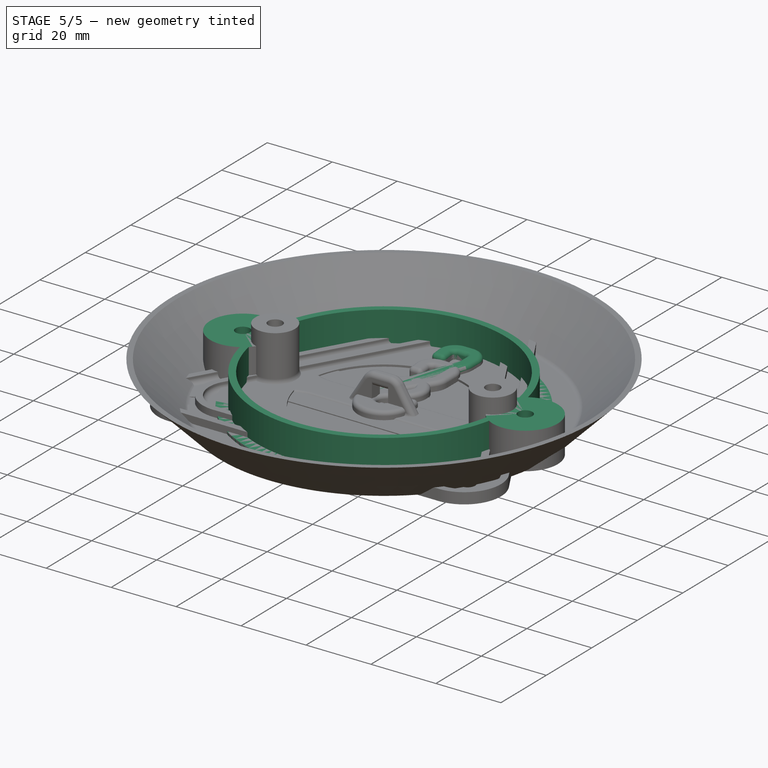
[diagram: stage 5 of 5 — iso view after this stage's code; geometry added in this stage tinted green]
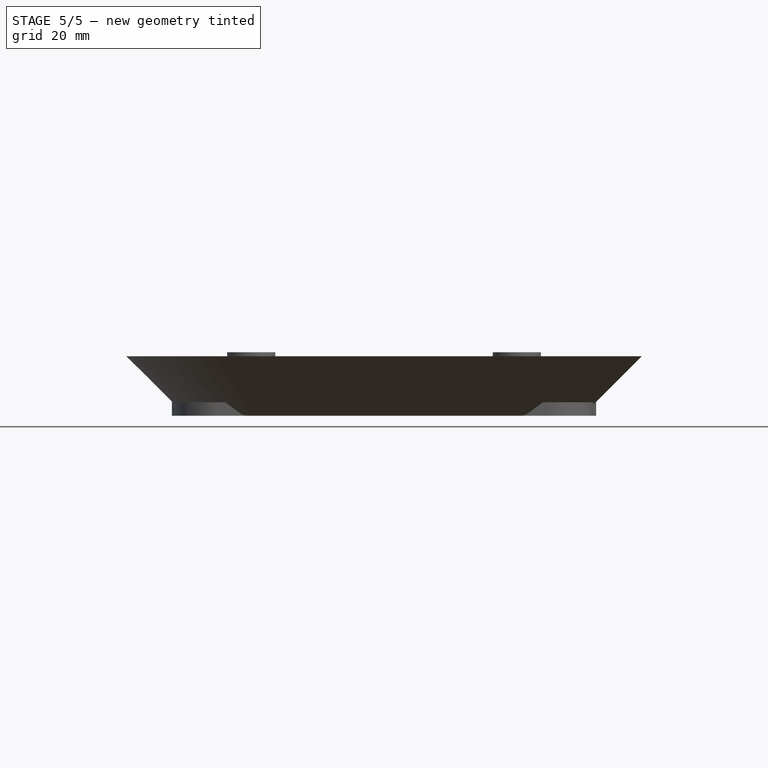
[diagram: stage 5 of 5 — front view after this stage's code; geometry added in this stage tinted green]
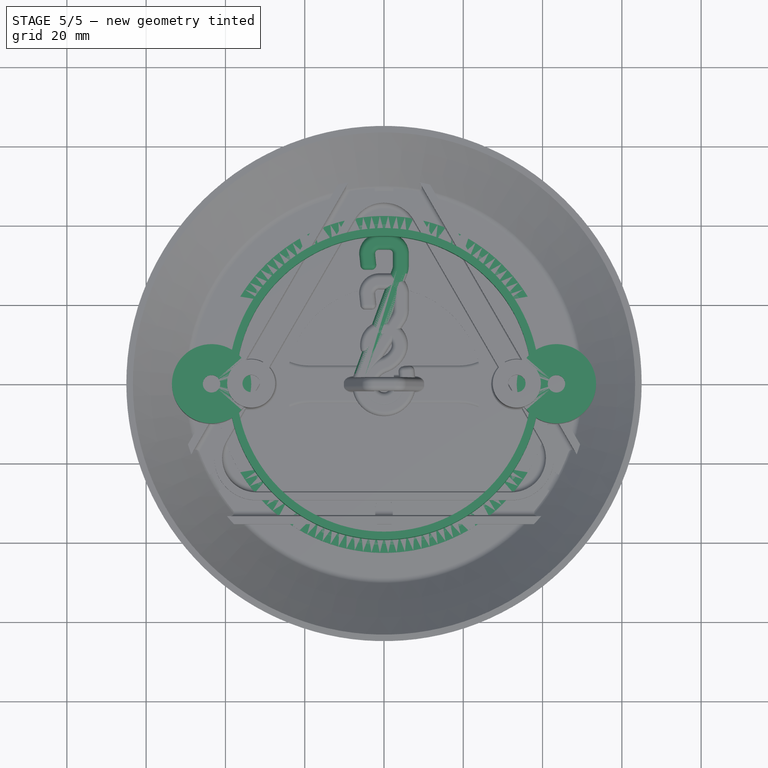
[diagram: stage 5 of 5 — top view after this stage's code; geometry added in this stage tinted green]
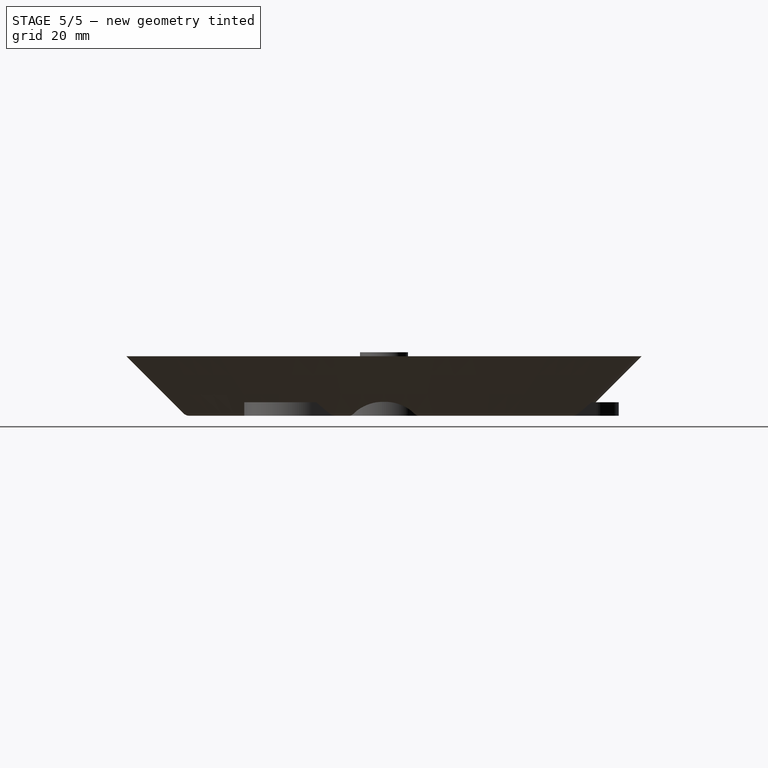
[diagram: stage 5 of 5 — right view after this stage's code; geometry added in this stage tinted green]
FEATURE [Sketcher::SketchObject] Sketch  label="AdapterSketch"
  FullyConstrained = false
  MapMode = 5
  Support = -> [XY_Plane]
  expr: .Constraints.ScrewDistance = Spreadsheet.ScrewDistance
  expr: Constraints[5] = .Constraints.ScrewDistance / 2 + 5mm
  expr: .Constraints.ScrewHoleExtra = Spreadsheet.ScrewHoleExtra
  expr: Constraints[1] = .Constraints.ScrewDistance / 2 + 10mm
  expr: Constraints[34] = .Constraints.ScrewHoleExtra * 4
  expr: Constraints[45] = Spreadsheet.HookHeight + 1mm
  expr: Constraints[21] = <<Screws>>.M4Radius
  sketch-geometry (36):
    g0: Circle CenterX=0 CenterY=0 CenterZ=0 NormalX=0 NormalY=0 NormalZ=1 AngleXU=0 Radius=42.5
    g1: ArcOfCircle CenterX=0 CenterY=0 CenterZ=0 NormalX=0 NormalY=0 NormalZ=1 AngleXU=0 Radius=37.5 StartAngle=0.729728 EndAngle=2.41186
    g2: ArcOfCircle CenterX=0 CenterY=0 CenterZ=0 NormalX=0 NormalY=0 NormalZ=1 AngleXU=0 Radius=37.5 StartAngle=3.87132 EndAngle=5.55346
    g3: LineSegment StartX=-19.0066 StartY=-5 StartZ=0 EndX=-5.5 EndY=-5 EndZ=0
    g4: LineSegment StartX=19.0066 StartY=-5 StartZ=0 EndX=5.5 EndY=-5 EndZ=0
    g5: LineSegment StartX=-5.5 StartY=-5 StartZ=0 EndX=5.5 EndY=-5 EndZ=0
    g6: LineSegment StartX=-19.0066 StartY=5 StartZ=0 EndX=-5.5 EndY=5 EndZ=0
    g7: LineSegment StartX=-5.5 StartY=5 StartZ=0 EndX=5.5 EndY=5 EndZ=0
    g8: LineSegment StartX=5.5 StartY=5 StartZ=0 EndX=19.0066 EndY=5 EndZ=0
    g9: ArcOfCircle CenterX=-34 CenterY=0 CenterZ=0 NormalX=0 NormalY=0 NormalZ=1 AngleXU=0 Radius=2.2 StartAngle=1.5708 EndAngle=4.71239
    g10: ArcOfCircle CenterX=-31 CenterY=0 CenterZ=0 NormalX=0 NormalY=0 NormalZ=1 AngleXU=0 Radius=2.2 StartAngle=4.71239 EndAngle=7.85398
    g11: LineSegment StartX=-34 StartY=-2.2 StartZ=0 EndX=-31 EndY=-2.2 EndZ=0
    g12: LineSegment StartX=-34 StartY=2.2 StartZ=0 EndX=-31 EndY=2.2 EndZ=0
    g13: ArcOfCircle CenterX=31 CenterY=0 CenterZ=0 NormalX=0 NormalY=0 NormalZ=1 AngleXU=0 Radius=2.2 StartAngle=1.5708 EndAngle=4.71239
    g14: ArcOfCircle CenterX=34 CenterY=0 CenterZ=0 NormalX=0 NormalY=0 NormalZ=1 AngleXU=0 Radius=2.2 StartAngle=4.71239 EndAngle=7.85398
    g15: LineSegment StartX=31 StartY=-2.2 StartZ=0 EndX=34 EndY=-2.2 EndZ=0
    g16: LineSegment StartX=31 StartY=2.2 StartZ=0 EndX=34 EndY=2.2 EndZ=0
    g17: ArcOfCircle CenterX=19.0066 CenterY=17 CenterZ=0 NormalX=0 NormalY=0 NormalZ=1 AngleXU=0 Radius=12 StartAngle=4.71239 EndAngle=7.01291
    g18: ArcOfCircle CenterX=19.0066 CenterY=-17 CenterZ=0 NormalX=0 NormalY=0 NormalZ=1 AngleXU=0 Radius=12 StartAngle=5.55346 EndAngle=7.85398
    g19: ArcOfCircle CenterX=-19.0066 CenterY=17 CenterZ=0 NormalX=0 NormalY=0 NormalZ=1 AngleXU=0 Radius=12 StartAngle=2.41186 EndAngle=4.71239
    g20: ArcOfCircle CenterX=-19.0066 CenterY=-17 CenterZ=0 NormalX=0 NormalY=0 NormalZ=1 AngleXU=0 Radius=12 StartAngle=1.5708 EndAngle=3.87132
    g21: GeomPoint X=-32.5 Y=0 Z=0
    g22: GeomPoint X=32.5 Y=0 Z=0
    g23: LineSegment StartX=-2.5 StartY=2 StartZ=0 EndX=2.5 EndY=2 EndZ=0
    g24: LineSegment StartX=-2.5 StartY=-2 StartZ=0 EndX=2.5 EndY=-2 EndZ=0
    g25: LineSegment StartX=-2.5 StartY=2 StartZ=0 EndX=-2.5 EndY=-2 EndZ=0
    g26: LineSegment StartX=2.5 StartY=2 StartZ=0 EndX=2.5 EndY=-2 EndZ=0
    g27: ArcOfCircle CenterX=-5.5 CenterY=3.5 CenterZ=0 NormalX=0 NormalY=0 NormalZ=1 AngleXU=0 Radius=1.5 StartAngle=0 EndAngle=1.5708
    g28: ArcOfCircle CenterX=-2.5 CenterY=3.5 CenterZ=0 NormalX=0 NormalY=0 NormalZ=1 AngleXU=0 Radius=1.5 StartAngle=3.14159 EndAngle=4.71239
    g29: ArcOfCircle CenterX=5.5 CenterY=3.5 CenterZ=0 NormalX=0 NormalY=0 NormalZ=1 AngleXU=0 Radius=1.5 StartAngle=1.5708 EndAngle=3.14159
    g30: ArcOfCircle CenterX=2.5 CenterY=3.5 CenterZ=0 NormalX=0 NormalY=0 NormalZ=1 AngleXU=0 Radius=1.5 StartAngle=4.71239 EndAngle=6.28319
    g31: LineSegment StartX=-4 StartY=3.5 StartZ=0 EndX=4 EndY=3.5 EndZ=0
    g32: ArcOfCircle CenterX=-5.5 CenterY=-3.5 CenterZ=0 NormalX=0 NormalY=0 NormalZ=1 AngleXU=0 Radius=1.5 StartAngle=4.71239 EndAngle=6.28319
    g33: ArcOfCircle CenterX=-2.5 CenterY=-3.5 CenterZ=0 NormalX=0 NormalY=0 NormalZ=1 AngleXU=0 Radius=1.5 StartAngle=1.5708 EndAngle=3.14159
    g34: ArcOfCircle CenterX=5.5 CenterY=-3.5 CenterZ=0 NormalX=0 NormalY=0 NormalZ=1 AngleXU=0 Radius=1.5 StartAngle=3.14159 EndAngle=4.71239
    g35: ArcOfCircle CenterX=2.5 CenterY=-3.5 CenterZ=0 NormalX=0 NormalY=0 NormalZ=1 AngleXU=0 Radius=1.5 StartAngle=-5.33e-14 EndAngle=1.5708
  constraints (84):
    c: Coincident(g0,g-1)
    c: Radius(g0) = 42.5
    c: Coincident(g1,g-1)
    c: Coincident(g2,g-1)
    c: Equal(g1,g2)
    c: Radius(g2) = 37.5
    c: Horizontal(g3)
    c: Horizontal(g4)
    c: Coincident(g5,g3)
    c: Symmetric(g3,g4,g-2)
    c: Coincident(g6,g7)
    c: Horizontal(g7)
    c: Coincident(g7,g8)
    c: Horizontal(g8)
    c: Horizontal(g6)
    c: Tangent(g9,g12) = 1.5708
    c: Tangent(g9,g11) = -1.5708
    c: Tangent(g11,g10) = -1.5708
    c: Tangent(g12,g10) = 1.5708
    c: Horizontal(g11)
    c: Equal(g9,g10)
    c: Radius(g10) = 2.2
    c: DistanceX(g11,g11) = 3  'ScrewHoleExtra'
    c: Tangent(g13,g16) = 1.5708
    c: Tangent(g13,g15) = -1.5708
    c: Tangent(g15,g14) = -1.5708
    c: Tangent(g16,g14) = 1.5708
    c: Horizontal(g15)
    c: Equal(g13,g14)
    c: Equal(g14,g10)
    c: Equal(g15,g11)
    c: DistanceY(g3,g6) = 10
    c: Tangent(g8,g17) = -1.5708
    c: Tangent(g1,g17) = -1.5708
    c: Radius(g17) = 12
    c: Tangent(g4,g18) = -1.5708
    c: Tangent(g2,g18) = -1.5708
    c: Equal(g18,g17)
    c: Equal(g4,g8)
    c: Equal(g19,g20)
    c: Equal(g20,g17)
    c: Tangent(g1,g19) = -1.5708
    c: Tangent(g6,g19) = -1.5708
    c: Tangent(g3,g20) = 1.5708
    c: Tangent(g2,g20) = -1.5708
    c: Equal(g3,g6) = 5
    c: PointOnObject(g21,g-1)
    c: Symmetric(g9,g10,g21)
    c: Symmetric(g13,g14,g22)
    c: DistanceX(g21,g22) = 65  'ScrewDistance'
    c: Symmetric(g22,g21,g-2)
    c: Horizontal(g23)
    c: Horizontal(g24)
    c: Coincident(g25,g23)
    c: Coincident(g25,g24)
    c: Coincident(g26,g23)
    c: Coincident(g26,g24)
    c: Vertical(g26)
    c: DistanceX(g24,g24) = 5
    c: DistanceY(g25,g25) = 4  'HookWidth'
    c: Tangent(g28,g23) = -1.5708
    c: Equal(g27,g28)
    c: Tangent(g28,g27) = 1.5708
    c: Tangent(g29,g8) = 1.5708
    c: Tangent(g30,g23) = -1.5708
    c: Equal(g30,g29)
    c: Tangent(g29,g30) = 1.5708
    c: Equal(g30,g28)
    c: Tangent(g27,g6) = 1.5708
    c: Coincident(g31,g27)
    c: Coincident(g31,g29)
    c: PointOnObject(g28,g31)
    c: Equal(g5,g7)
    c: Symmetric(g24,g23,g-1)
    c: Tangent(g32,g3) = -1.5708
    c: Tangent(g32,g33) = 1.5708
    c: Equal(g32,g27)
    c: Coincident(g33,g24)
    c: Equal(g33,g32)
    c: Equal(g35,g33)
    c: Tangent(g4,g34) = 1.5708
    c: Tangent(g34,g35) = 1.5708
    c: Coincident(g5,g4)
    c: Tangent(g35,g24) = 1.5708
FEATURE [PartDesign::Pad] Pad  label="AdapterPad"
  AllowMultiFace = false
  Direction = (1,1,1)
  Length = 2
  Length2 = 100
  Profile = -> Sketch
  Type = 0
FEATURE [PartDesign::Fillet] Fillet
  Base = -> Pad [Edge46,Edge13]
  BaseFeature = -> Pad
  Radius = 1
  SupportTransform = false
FEATURE [PartDesign::Body] Body  label="AdapterBody"
  Group = -> [Sketch,Pad,Fillet]
  Origin = -> Origin
  Tip = -> Fillet
FEATURE [Sketcher::SketchObject] Sketch001
  FullyConstrained = true
  MapMode = 5
  Support = -> [XY_Plane002]
  expr: Constraints[70] = Spreadsheet.HookLength
  expr: Constraints[71] = Sketch.Constraints.HookWidth + 0.5mm
  sketch-geometry (32):
    g0: ArcOfCircle CenterX=-1.25274 CenterY=33 CenterZ=0 NormalX=0 NormalY=0 NormalZ=1 AngleXU=0 Radius=1 StartAngle=1.5708 EndAngle=3.24631
    g1: LineSegment StartX=-1.25274 StartY=34 StartZ=0 EndX=1.25274 EndY=34 EndZ=0
    g2: LineSegment StartX=-1.25274 StartY=33 StartZ=0 EndX=-1.25274 EndY=34 EndZ=0
    g3: LineSegment StartX=-1.25274 StartY=33 StartZ=0 EndX=-2.24726 EndY=32.8955 EndZ=0
    g4: ArcOfCircle CenterX=1.25274 CenterY=33 CenterZ=0 NormalX=0 NormalY=0 NormalZ=1 AngleXU=0 Radius=1 StartAngle=0 EndAngle=1.5708
    g5: LineSegment StartX=1.25274 StartY=33 StartZ=0 EndX=1.25274 EndY=34 EndZ=0
    g6: LineSegment StartX=1.25274 StartY=33 StartZ=0 EndX=2.25274 EndY=33 EndZ=0
    g7: LineSegment StartX=-2.24726 StartY=32.8955 StartZ=0 EndX=-1.82915 EndY=28.9174 EndZ=0
    g8: LineSegment StartX=-1.82915 StartY=28.9174 StartZ=0 EndX=-5.82915 EndY=28.9174 EndZ=0
    g9: LineSegment StartX=-5.82915 StartY=28.9174 StartZ=0 EndX=-6.24726 EndY=32.8955 EndZ=0
    g10: LineSegment StartX=-1.25274 StartY=37.9956 StartZ=0 EndX=1.25274 EndY=37.9956 EndZ=0
    g11: ArcOfCircle CenterX=-1.25274 CenterY=33 CenterZ=0 NormalX=0 NormalY=0 NormalZ=1 AngleXU=0 Radius=4.99562 StartAngle=1.5708 EndAngle=3.16252
    g12: LineSegment StartX=-1.25274 StartY=34 StartZ=0 EndX=-1.25274 EndY=37.9956 EndZ=0
    g13: ArcOfCircle CenterX=1.25274 CenterY=33 CenterZ=0 NormalX=0 NormalY=0 NormalZ=1 AngleXU=0 Radius=4.99562 StartAngle=0 EndAngle=1.5708
    g14: LineSegment StartX=2.25274 StartY=33 StartZ=0 EndX=6.24835 EndY=33 EndZ=0
    g15: LineSegment StartX=2.25274 StartY=33 StartZ=0 EndX=2.25274 EndY=30 EndZ=0
    g16: LineSegment StartX=6.24835 StartY=33 StartZ=0 EndX=6.24835 EndY=30 EndZ=0
    g17: ArcOfCircle CenterX=0 CenterY=30 CenterZ=0 NormalX=0 NormalY=0 NormalZ=1 AngleXU=0 Radius=2.25274 StartAngle=5.93455 EndAngle=6.28319
    g18: LineSegment StartX=2.25274 StartY=30 StartZ=0 EndX=0 EndY=30 EndZ=0
    g19: ArcOfCircle CenterX=0 CenterY=30 CenterZ=0 NormalX=0 NormalY=0 NormalZ=1 AngleXU=0 Radius=6.24835 StartAngle=5.93455 EndAngle=6.28319
    g20: LineSegment StartX=0 StartY=30 StartZ=0 EndX=5.87246 EndY=27.8655 EndZ=0
    g21: LineSegment StartX=2.11722 StartY=29.2304 StartZ=0 EndX=-7.51461 EndY=2.7314 EndZ=0
    g22: LineSegment StartX=5.87246 StartY=27.8655 StartZ=0 EndX=-3.75936 EndY=1.36645 EndZ=0
    g23: ArcOfCircle CenterX=0 CenterY=0 CenterZ=0 NormalX=0 NormalY=0 NormalZ=1 AngleXU=0 Radius=7.99562 StartAngle=2.79296 EndAngle=6.38791
    g24: LineSegment StartX=0 StartY=0 StartZ=0 EndX=-7.51461 EndY=2.7314 EndZ=0
    g25: ArcOfCircle CenterX=0 CenterY=0 CenterZ=0 NormalX=0 NormalY=0 NormalZ=1 AngleXU=0 Radius=4 StartAngle=2.79296 EndAngle=6.38791
    g26: LineSegment StartX=0 StartY=0 StartZ=0 EndX=3.97809 EndY=0.418114 EndZ=0
    g27: LineSegment StartX=3.97809 StartY=0.418114 StartZ=0 EndX=7.95181 EndY=0.835769 EndZ=0
    g28: GeomPoint X=0 Y=4 Z=0
    g29: LineSegment StartX=3.97809 StartY=0.418114 StartZ=0 EndX=3.55997 EndY=4.3962 EndZ=0
    g30: LineSegment StartX=3.55997 StartY=4.3962 StartZ=0 EndX=7.5337 EndY=4.81386 EndZ=0
    g31: LineSegment StartX=7.5337 StartY=4.81386 StartZ=0 EndX=7.95181 EndY=0.835769 EndZ=0
  constraints (86):
    c: Coincident(g1,g0)
    c: Coincident(g2,g0)
    c: Coincident(g2,g0)
    c: Vertical(g2)
    c: Coincident(g3,g0)
    c: Coincident(g3,g0)
    c: Coincident(g4,g1)
    c: Coincident(g5,g4)
    c: Coincident(g5,g1)
    c: Coincident(g6,g4)
    c: Coincident(g6,g4)
    c: Horizontal(g6)
    c: Vertical(g5)
    c: Equal(g4,g0)
    c: Symmetric(g0,g1,g-2)
    c: Radius(g0) = 1
    c: Coincident(g7,g0)
    c: Coincident(g8,g7)
    c: Horizontal(g8)
    c: Coincident(g9,g8)
    c: Equal(g7,g9)
    c: DistanceX(g8,g8) = 4
    c: Horizontal(g10)
    c: Equal(g1,g10)
    c: Coincident(g11,g0)
    c: Coincident(g11,g9)
    c: Coincident(g10,g11)
    c: Coincident(g12,g0)
    c: Coincident(g12,g10)
    c: Vertical(g12)
    c: Coincident(g13,g4)
    c: Coincident(g13,g10)
    c: Coincident(g14,g4)
    c: Coincident(g14,g13)
    c: Horizontal(g14)
    c: Coincident(g15,g4)
    c: Vertical(g15)
    c: Coincident(g16,g13)
    c: Vertical(g16)
    c: PointOnObject(g17,g-2)
    c: Coincident(g17,g15)
    c: Coincident(g18,g15)
    c: Coincident(g18,g17)
    c: Horizontal(g18)
    c: Equal(g15,g16)
    c: Coincident(g19,g17)
    c: Coincident(g19,g16)
    c: DistanceY(g16,g16) = 3
    c: Coincident(g20,g17)
    c: Coincident(g20,g19)
    c: PointOnObject(g17,g20)
    c: Coincident(g21,g17)
    c: Coincident(g22,g19)
    c: Perpendicular(g21,g20)
    c: Parallel(g22,g21)
    c: Coincident(g23,g21)
    c: Coincident(g24,g23)
    c: Coincident(g24,g21)
    c: Perpendicular(g21,g24)
    c: PointOnObject(g22,g24)
    c: Coincident(g25,g23)
    c: Coincident(g25,g22)
    c: Radius(g25) = 4
    c: Coincident(g26,g23)
    c: Coincident(g26,g25)
    c: Coincident(g27,g25)
    c: Coincident(g27,g23)
    c: Coincident(g23,g-1)
    c: PointOnObject(g28,g25)
    c: PointOnObject(g28,g-2)
    c: DistanceY(g28,g1) = 30
    c: DistanceX(g0,g4) = 4.5
    c: Parallel(g9,g7)
    c: Angle(g7,g1) = 1.46608
    c: Perpendicular(g7,g3)
    c: Parallel(g26,g27)
    c: Angle(g26,g-2) = 1.46608
    c: Coincident(g29,g30)
    c: Coincident(g30,g31)
    c: Coincident(g31,g23)
    c: Parallel(g29,g31)
    c: Equal(g29,g31)
    c: Perpendicular(g27,g29)
    c: Coincident(g25,g29)
    c: Distance(g31) = 4
    c: Distance(g9) = 4
FEATURE [PartDesign::Pad] Pad001
  AllowMultiFace = false
  Direction = (1,1,1)
  Length = 4
  Length2 = 100
  Profile = -> Sketch001
  Refine = true
  Type = 0
  expr: Length = Spreadsheet.HookHeight
FEATURE [Spreadsheet::Sheet] Spreadsheet
  cells = B2=ScrewDistance; C2(ScrewDistance)==65mm; B3=ScrewHoleExtra; C3(ScrewHoleExtra)==3mm; B4=HookLength; C4(HookLength)==30mm; B5=HookHeight; C5(HookHeight)==4mm; B6=UFOScrewDistance; C6(UFOScrewDistance)==87mm
FEATURE [PartDesign::Fillet] Fillet003
  Base = -> Pad001 [Face15,Face22,Face21,Face5]
  BaseFeature = -> Pad001
  Radius = 1.2
  SupportTransform = false
FEATURE [Sketcher::SketchObject] Sketch005  label="UFONutHousingTop"
  AttachmentOffset = pos=(0,0,9.3) rot=(0,0,1;0rad)
  FullyConstrained = false
  MapMode = 5
  Placement = pos=(0,0,9.3) rot=(0,0,1;0rad)
  Support = -> [XY_Plane005]
  expr: Constraints[8] = Sketch003.Constraints.UFOArmRadius
  expr: .AttachmentOffset.Base.z = <<UFONutHousing>>.AttachmentOffset.Base.z + <<UFONutHousing_>>.Length
  expr: Constraints[3] = <<Screws>>.M4Radius
  expr: Constraints[4] = <<UFOBase>>.Constraints.UFOScrewDistance
  sketch-geometry (4):
    g0: Circle CenterX=-43.5 CenterY=0 CenterZ=0 NormalX=0 NormalY=0 NormalZ=1 AngleXU=0 Radius=2.2
    g1: Circle CenterX=43.5 CenterY=0 CenterZ=0 NormalX=0 NormalY=0 NormalZ=1 AngleXU=0 Radius=2.2
    g2: Circle CenterX=-43.5 CenterY=0 CenterZ=0 NormalX=0 NormalY=0 NormalZ=1 AngleXU=0 Radius=10
    g3: Circle CenterX=43.5 CenterY=0 CenterZ=0 NormalX=0 NormalY=0 NormalZ=1 AngleXU=0 Radius=10
  constraints (9):
    c: PointOnObject(g0,g-1)
    c: Equal(g1,g0)
    c: Symmetric(g0,g1,g-2)
    c: Radius(g0) = 2.2
    c: DistanceX(g0,g1) = 87
    c: Coincident(g2,g0)
    c: Coincident(g3,g1)
    c: Equal(g2,g3)
    c: Radius(g2) = 10
FEATURE [PartDesign::Pad] Pad005  label="UFONutHousingTop_"
  AllowMultiFace = false
  BaseFeature = -> Pad004
  Direction = (1,1,1)
  Length = 2
  Length2 = 100
  Profile = -> Sketch005
  Refine = true
  Type = 0
FEATURE [Sketcher::SketchObject] Sketch006
  AttachmentOffset = pos=(0,0,11.3) rot=(0,0,1;0rad)
  ExternalGeometry = -> [Sketch003]
  FullyConstrained = false
  MapMode = 5
  Placement = pos=(0,0,11.3) rot=(0,0,1;0rad)
  Support = -> [XY_Plane005]
  expr: .AttachmentOffset.Base.z = <<UFONutHousingTop>>.AttachmentOffset.Base.z + <<UFONutHousingTop_>>.Length
  sketch-geometry (3):
    g0: Circle CenterX=0 CenterY=0 CenterZ=0 NormalX=0 NormalY=0 NormalZ=1 AngleXU=0 Radius=39.3
    g1: Circle CenterX=0 CenterY=0 CenterZ=0 NormalX=0 NormalY=0 NormalZ=1 AngleXU=0 Radius=37.3
    g2: LineSegment StartX=-28.239 StartY=27.3322 StartZ=0 EndX=-26.8019 EndY=25.9412 EndZ=0
  constraints (7):
    c: Coincident(g0,g-1)
    c: PointOnObject(g-3,g0)
    c: Coincident(g1,g0)
    c: PointOnObject(g2,g0)
    c: PointOnObject(g2,g1)
    c: PointOnObject(g0,g2)
    c: Distance(g2) = 2
FEATURE [PartDesign::Pad] Pad006
  AllowMultiFace = false
  BaseFeature = -> Pad005
  Direction = (1,1,1)
  Length = 11.3
  Length2 = 100
  Profile = -> Sketch006
  Refine = true
  Reversed = true
  Type = 0
  expr: Length = Sketch006.Placement.Base.z
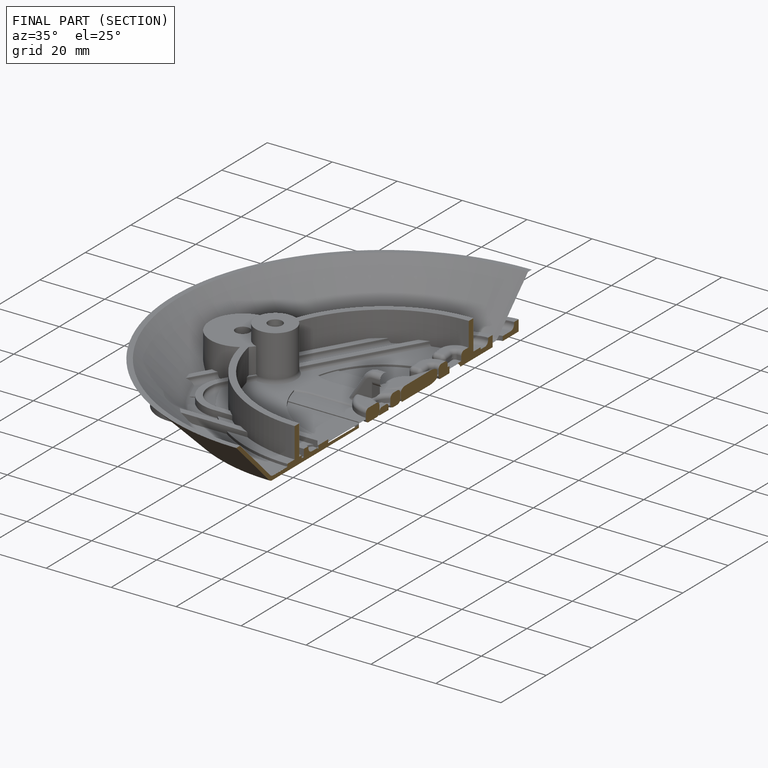
[diagram: finished part — half-section view (interior)]
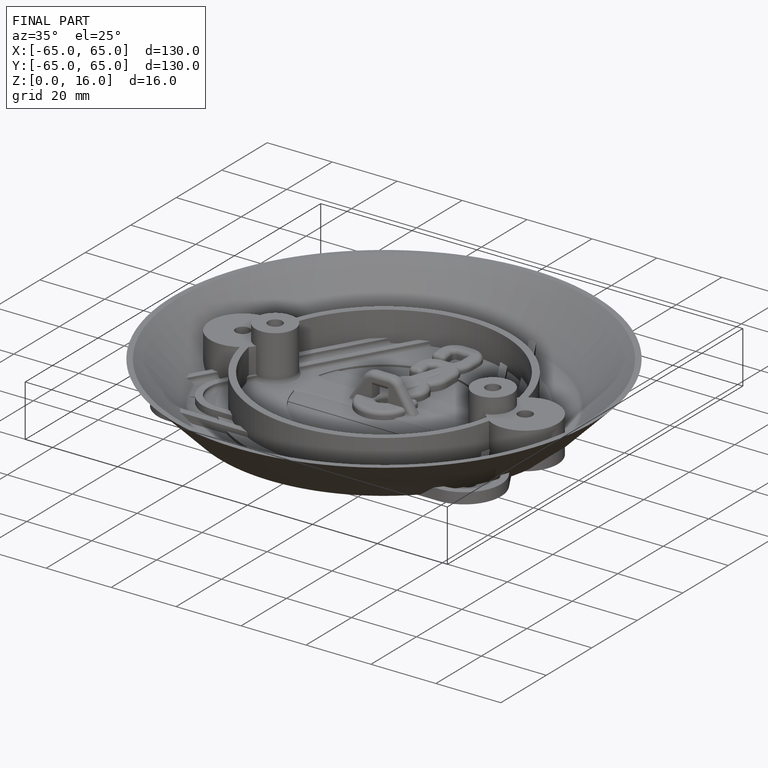
[diagram: finished part — iso view with bounding-box wireframe]
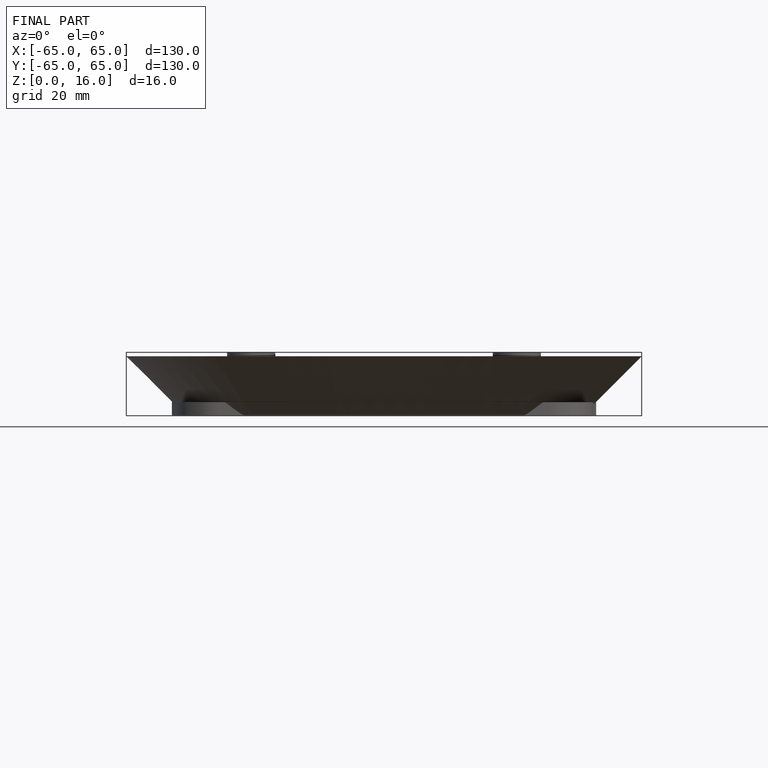
[diagram: finished part — front view with bounding-box wireframe]
